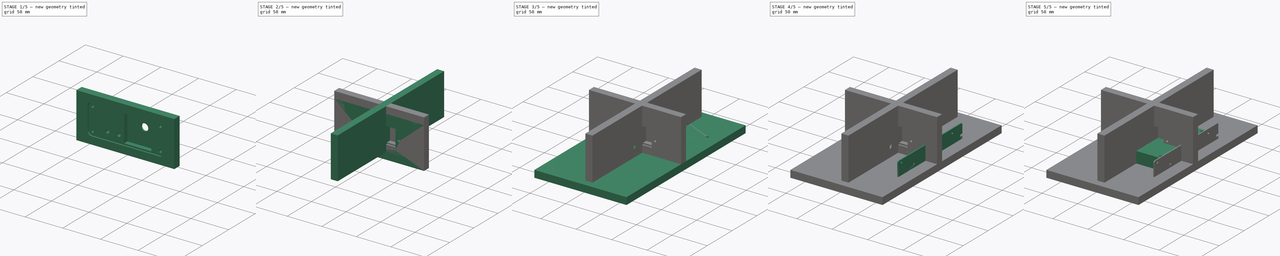
[diagram: build sequence overview — one tinted view per stage of 5, left to right]
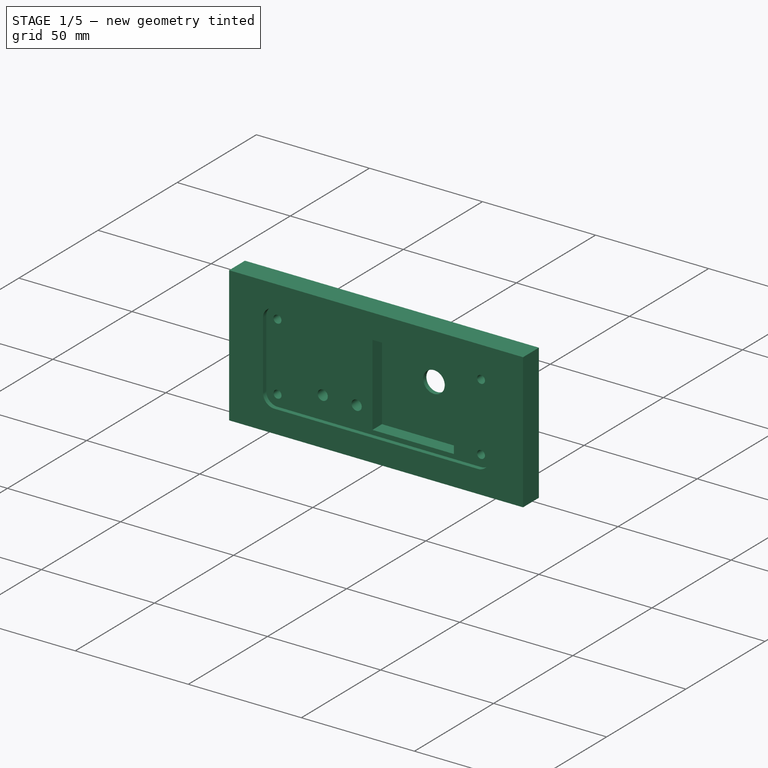
[diagram: stage 1 of 5 — iso view after this stage's code; geometry added in this stage tinted green]
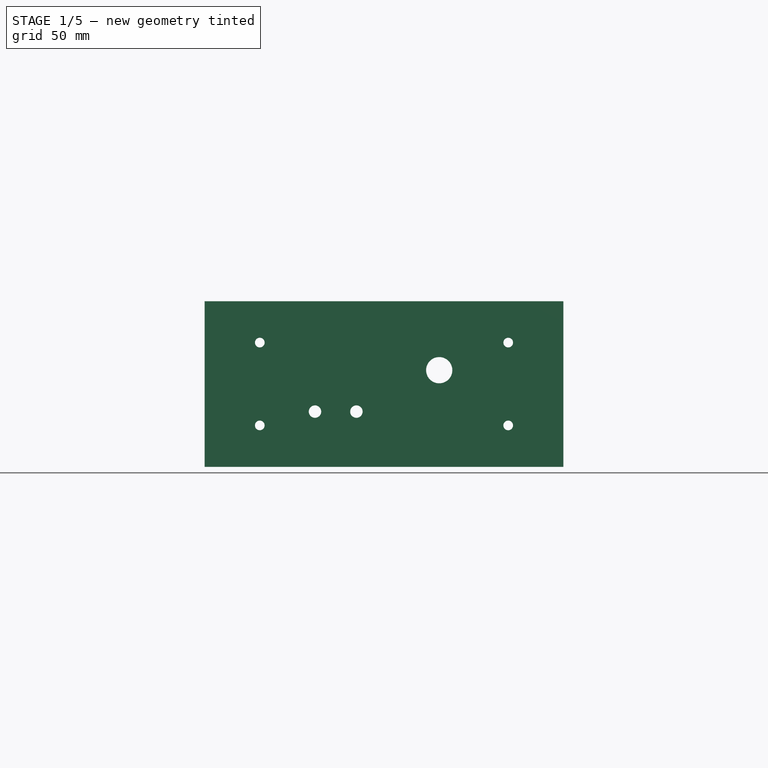
[diagram: stage 1 of 5 — front view after this stage's code; geometry added in this stage tinted green]
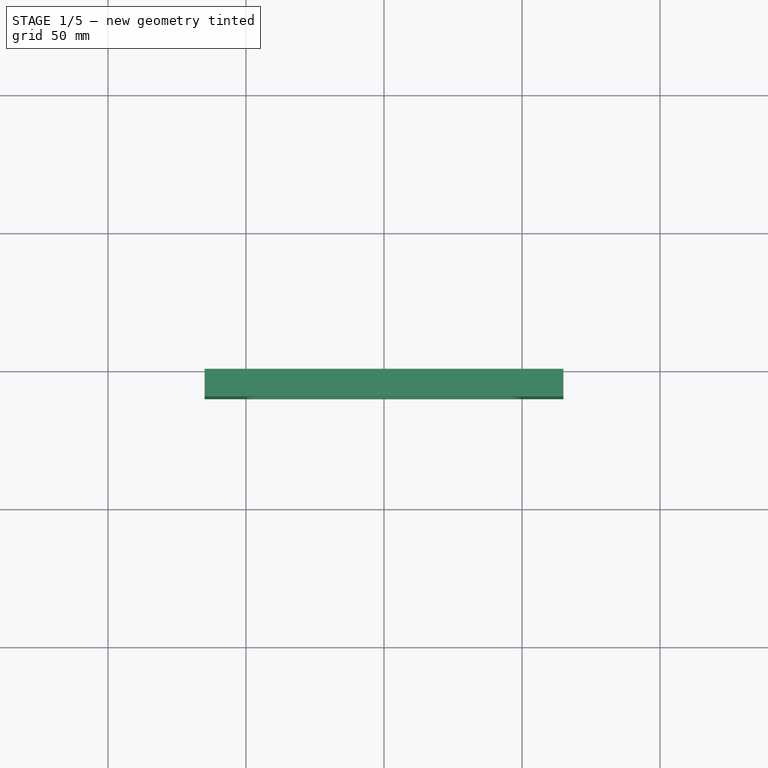
[diagram: stage 1 of 5 — top view after this stage's code; geometry added in this stage tinted green]
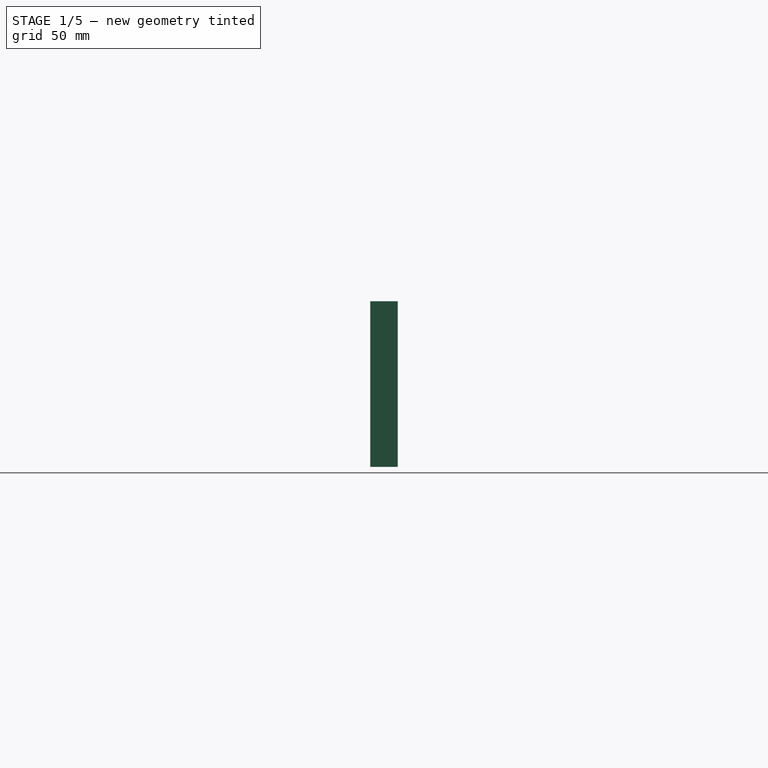
[diagram: stage 1 of 5 — right view after this stage's code; geometry added in this stage tinted green]
FCSTD DOCUMENT  (FreeCAD 1.1R20260414 (Git shallow))
Label: Power_Supply
License: All rights reserved
LicenseURL: http://en.wikipedia.org/wiki/All_rights_reserved
objects: Sketcher::SketchObject×24, App::Point×18, PartDesign::Pocket×15, PartDesign::Pad×9, PartDesign::Body×9, App::Part×9, PartDesign::Fillet×3, PartDesign::FeaturePython×1
note: 140 computed .brp shape members not serialized (recipe doc carries the construction recipe); baked Part::Feature solids carry a one-line shape summary decoded from their .brp

FEATURE [PartDesign::Body] Body007  label="Left_Body"
  AllowCompound = true
  Group = -> [Sketch020,Pad007,Sketch021,Pocket013]
  Origin = -> Origin014
  Tip = -> Pocket013
FEATURE [App::Part] Part006  label="Left_Part"
  Group = -> [Body007]
  Origin = -> Origin013
  Placement = pos=(-65,0,0) rot=(0,0,1;0rad)
FEATURE [Sketcher::SketchObject] Sketch022
  ArcFitTolerance = 0
  AttachmentSupport = -> [XZ_Plane008]
  ExternalTypes = [0]
  FullyConstrained = true
  MakeInternals = false
  MapMode = 5
  Placement = pos=(0,0,0) rot=(1,0,0;1.5708rad)
  _ExternalGeoVersion = 0
  sketch-geometry (4):
    g0: LineSegment StartX=-65 StartY=70 StartZ=0 EndX=65 EndY=70 EndZ=0
    g1: LineSegment StartX=65 StartY=70 StartZ=0 EndX=65 EndY=10 EndZ=0
    g2: LineSegment StartX=65 StartY=10 StartZ=0 EndX=-65 EndY=10 EndZ=0
    g3: LineSegment StartX=-65 StartY=10 StartZ=0 EndX=-65 EndY=70 EndZ=0
  constraints (10):
    c: Coincident(g0,g1)
    c: Coincident(g1,g2)
    c: Coincident(g2,g3)
    c: Coincident(g3,g0)
    c: Horizontal(g0)
    c: Horizontal(g2)
    c: Vertical(g1)
    c: Vertical(g3)
    c: Coincident(g0,g-3)
    c: Coincident(g1,g-4)
FEATURE [PartDesign::Pad] Pad008
  AlongSketchNormal = false
  Direction = (0,-1,2e-16)
  Length = 10
  Length2 = 100
  Placement = pos=(0,0,0) rot=(1,0,0;1.5708rad)
  Profile = -> Sketch022
  SideType = 0
  Suppressed = false
  Type = 0
  Type2 = 0
FEATURE [Sketcher::SketchObject] Sketch023
  ArcFitTolerance = 0
  AttachmentSupport = -> [Pad008]
  ExternalGeometry = -> [Pad008]
  ExternalTypes = [0]
  FullyConstrained = true
  MakeInternals = false
  MapMode = 5
  Placement = pos=(0,-10,0) rot=(1,0,0;1.5708rad)
  _ExternalGeoVersion = 0
  sketch-geometry (11):
    g0: Circle CenterX=-25 CenterY=30 CenterZ=0 NormalX=0 NormalY=0 NormalZ=1 AngleXU=0 Radius=2.25
    g1: Circle CenterX=-10 CenterY=30 CenterZ=0 NormalX=0 NormalY=0 NormalZ=1 AngleXU=0 Radius=2.25
    g2: GeomPoint [constr] X=20 Y=45 Z=0
    g3: LineSegment StartX=-3 StartY=58 StartZ=0 EndX=33 EndY=58 EndZ=0
    g4: LineSegment StartX=33 StartY=58 StartZ=0 EndX=33 EndY=22 EndZ=0
    g5: LineSegment StartX=33 StartY=22 StartZ=0 EndX=-3 EndY=22 EndZ=0
    g6: LineSegment StartX=-3 StartY=22 StartZ=0 EndX=-3 EndY=58 EndZ=0
    g7: Circle CenterX=-45 CenterY=55 CenterZ=0 NormalX=0 NormalY=0 NormalZ=1 AngleXU=0 Radius=1.75
    g8: Circle CenterX=-45 CenterY=25 CenterZ=0 NormalX=0 NormalY=0 NormalZ=1 AngleXU=0 Radius=1.75
    g9: Circle CenterX=45 CenterY=55 CenterZ=0 NormalX=0 NormalY=0 NormalZ=1 AngleXU=0 Radius=1.75
    g10: Circle CenterX=45 CenterY=25 CenterZ=0 NormalX=0 NormalY=0 NormalZ=1 AngleXU=0 Radius=1.75
  constraints (30):
    c: Coincident(g3,g4)
    c: Coincident(g4,g5)
    c: Coincident(g5,g6)
    c: Coincident(g6,g3)
    c: Horizontal(g3)
    c: Horizontal(g5)
    c: Vertical(g4)
    c: Vertical(g6)
    c: DistanceX(g3,g2) = 23
    c: DistanceY(g5,g2) = 23
    c: DistanceY(g2,g3) = 13
    c: DistanceX(g2,g3) = 13
    c: Diameter(g1) = 4.5
    c: Diameter(g0) = 4.5
    c: DistanceX(g2,g-3) = 45
    c: DistanceY(g2,g-3) = 25
    c: DistanceX(g-3,g0) = 40
    c: DistanceX(g-3,g1) = 55
    c: DistanceY(g0,g-3) = 40
    c: DistanceY(g1,g-3) = 40
    c: Diameter(g7) = 3.5
    c: Diameter(g8) = 3.5
    c: Diameter(g9) = 3.5
    c: Diameter(g10) = 3.5
    c: DistanceY(g7,g-3) = 15
    c: DistanceX(g-3,g7) = 20
    c: DistanceX(g-4,g8) = 20
    c: DistanceY(g-4,g8) = 15
    c: Symmetric(g7,g9,g-2)
    c: Symmetric(g8,g10,g-2)
FEATURE [PartDesign::Pocket] Pocket014
  BaseFeature = -> Pad008
  Direction = (0,1,-2e-16)
  Length = 5
  Length2 = 100
  Placement = pos=(0,0,0) rot=(1,0,0;1.5708rad)
  Profile = -> Sketch023
  SideType = 2
  Suppressed = false
  Type = 1
  Type2 = 0
FEATURE [Sketcher::SketchObject] Sketch024
  ArcFitTolerance = 0
  AttachmentSupport = -> [Pocket014]
  ExternalGeometry = -> [Pocket014]
  ExternalTypes = [0]
  FullyConstrained = true
  MakeInternals = false
  MapMode = 5
  Placement = pos=(0,-10,0) rot=(1,0,0;1.5708rad)
  _ExternalGeoVersion = 0
  sketch-geometry (4):
    g0: LineSegment StartX=-50 StartY=60 StartZ=0 EndX=50 EndY=60 EndZ=0
    g1: LineSegment StartX=50 StartY=60 StartZ=0 EndX=50 EndY=20 EndZ=0
    g2: LineSegment StartX=50 StartY=20 StartZ=0 EndX=-50 EndY=20 EndZ=0
    g3: LineSegment StartX=-50 StartY=20 StartZ=0 EndX=-50 EndY=60 EndZ=0
  constraints (12):
    c: Coincident(g0,g1)
    c: Coincident(g1,g2)
    c: Coincident(g2,g3)
    c: Coincident(g3,g0)
    c: Horizontal(g0)
    c: Horizontal(g2)
    c: Vertical(g1)
    c: Vertical(g3)
    c: DistanceY(g1,g1) = 40
    c: DistanceY(g0,g-3) = 10
    c: DistanceX(g0,g0) = 100
    c: DistanceX(g0,g-3) = 15
FEATURE [PartDesign::Pocket] Pocket015
  BaseFeature = -> Pocket014
  Direction = (0,1,-2e-16)
  Length = 2
  Length2 = 100
  Placement = pos=(0,0,0) rot=(1,0,0;1.5708rad)
  Profile = -> Sketch024
  SideType = 0
  Suppressed = false
  Type = 0
  Type2 = 0
FEATURE [PartDesign::Fillet] Fillet002
  Base = -> Pocket015 [Edge48,Edge50,Edge52,Edge47]
  BaseFeature = -> Pocket015
  Placement = pos=(0,0,0) rot=(1,0,0;1.5708rad)
  Radius = 5
  SupportTransform = false
  Suppressed = false
  UseAllEdges = false
FEATURE [PartDesign::Body] Body008  label="Front_Body"
  AllowCompound = true
  Group = -> [Sketch022,Pad008,Sketch023,Pocket014,Sketch024,Pocket015,Fillet002]
  Origin = -> Origin016
  Tip = -> Fillet002
FEATURE [App::Part] Part007  label="Front_Part"
  Group = -> [Body008]
  Origin = -> Origin015
  Placement = pos=(0,-110,0) rot=(0,0,1;0rad)
FEATURE [Sketcher::SketchObject] Sketch025
  ArcFitTolerance = 0
  AttachmentSupport = -> [XZ_Plane009]
  ExternalTypes = [0]
  FullyConstrained = true
  MakeInternals = false
  MapMode = 5
  Placement = pos=(0,0,0) rot=(1,0,0;1.5708rad)
  _ExternalGeoVersion = 0
  sketch-geometry (8):
    g0: LineSegment StartX=-45 StartY=60 StartZ=0 EndX=45 EndY=60 EndZ=0
    g1: LineSegment StartX=50 StartY=55 StartZ=0 EndX=50 EndY=25 EndZ=0
    g2: LineSegment StartX=45 StartY=20 StartZ=0 EndX=-45 EndY=20 EndZ=0
    g3: LineSegment StartX=-50 StartY=25 StartZ=0 EndX=-50 EndY=55 EndZ=0
    g4: ArcOfCircle CenterX=-45 CenterY=55 CenterZ=0 NormalX=0 NormalY=0 NormalZ=1 AngleXU=0 Radius=5 StartAngle=1.5708 EndAngle=3.14159
    g5: ArcOfCircle CenterX=45 CenterY=55 CenterZ=0 NormalX=0 NormalY=0 NormalZ=1 AngleXU=0 Radius=5 StartAngle=5e-16 EndAngle=1.5708
    g6: ArcOfCircle CenterX=45 CenterY=25 CenterZ=0 NormalX=0 NormalY=0 NormalZ=1 AngleXU=0 Radius=5 StartAngle=4.71239 EndAngle=6.28319
    g7: ArcOfCircle CenterX=-45 CenterY=25 CenterZ=0 NormalX=0 NormalY=0 NormalZ=1 AngleXU=0 Radius=5 StartAngle=3.14159 EndAngle=4.71239
  constraints (14):
    c: Tangent(g0,g4) = 1.5708
    c: Tangent(g3,g4) = 1.5708
    c: Tangent(g0,g5) = 1.5708
    c: Tangent(g1,g5) = 1.5708
    c: Tangent(g1,g6) = 1.5708
    c: Tangent(g2,g6) = 1.5708
    c: Tangent(g3,g7) = 1.5708
    c: Tangent(g2,g7) = 1.5708
    c: Coincident(g0,g-3)
    c: Coincident(g1,g-5)
    c: Coincident(g3,g-4)
    c: Coincident(g3,g-4)
    c: Coincident(g2,g-6)
    c: Coincident(g1,g-5)
FEATURE [PartDesign::Pad] Pad009
  AlongSketchNormal = false
  Direction = (0,-1,2e-16)
  Length = 2
  Length2 = 100
  Placement = pos=(0,0,0) rot=(1,0,0;1.5708rad)
  Profile = -> Sketch025
  SideType = 0
  Suppressed = false
  Type = 0
  Type2 = 0
FEATURE [Sketcher::SketchObject] Sketch026
  ArcFitTolerance = 0
  AttachmentSupport = -> [Pad009]
  ExternalTypes = [0]
  FullyConstrained = true
  MakeInternals = false
  MapMode = 5
  Placement = pos=(0,-2,0) rot=(1,0,0;1.5708rad)
  _ExternalGeoVersion = 0
  sketch-geometry (7):
    g0: Circle CenterX=-45 CenterY=55 CenterZ=0 NormalX=0 NormalY=0 NormalZ=1 AngleXU=0 Radius=1.75
    g1: Circle CenterX=-45 CenterY=25 CenterZ=0 NormalX=0 NormalY=0 NormalZ=1 AngleXU=0 Radius=1.75
    g2: Circle CenterX=-25 CenterY=30 CenterZ=0 NormalX=0 NormalY=0 NormalZ=1 AngleXU=0 Radius=2.25
    g3: Circle CenterX=-10 CenterY=30 CenterZ=0 NormalX=0 NormalY=0 NormalZ=1 AngleXU=0 Radius=2.25
    g4: Circle CenterX=45 CenterY=55 CenterZ=0 NormalX=0 NormalY=0 NormalZ=1 AngleXU=0 Radius=1.75
    g5: Circle CenterX=45 CenterY=25 CenterZ=0 NormalX=0 NormalY=0 NormalZ=1 AngleXU=0 Radius=1.75
    g6: Circle CenterX=20 CenterY=45 CenterZ=0 NormalX=0 NormalY=0 NormalZ=1 AngleXU=0 Radius=4.75
  constraints (21):
    c: Diameter(g0) = 3.5
    c: Diameter(g1) = 3.5
    c: Diameter(g2) = 4.5
    c: Diameter(g3) = 4.5
    c: Diameter(g4) = 3.5
    c: Diameter(g5) = 3.5
    c: DistanceX(g0,g-3) = 1.75
    c: DistanceY(g0,g-3) = 0
    c: DistanceX(g1,g-4) = 1.75
    c: DistanceY(g-4,g1) = 0
    c: DistanceX(g4,g-5) = 1.75
    c: DistanceY(g4,g-5) = 0
    c: DistanceX(g5,g-6) = 1.75
    c: DistanceY(g-6,g5) = 0
    c: DistanceX(g2,g-7) = 2.25
    c: DistanceY(g2,g-7) = 0
    c: DistanceX(g3,g-8) = 2.25
    c: DistanceY(g3,g-8) = 0
    c: DistanceX(g6,g-9) = 30
    c: DistanceY(g6,g-10) = 15
    c: Diameter(g6) = 9.5
FEATURE [PartDesign::Pocket] Pocket016
  BaseFeature = -> Pad009
  Direction = (0,1,-2e-16)
  Length = 5
  Length2 = 100
  Placement = pos=(0,0,0) rot=(1,0,0;1.5708rad)
  Profile = -> Sketch026
  SideType = 2
  Suppressed = false
  Type = 1
  Type2 = 0
FEATURE [PartDesign::Body] Body009  label="AluminiumProfile_Body"
  AllowCompound = true
  Group = -> [Sketch025,Pad009,Sketch026,Pocket016]
  Origin = -> Origin018
  Tip = -> Pocket016
FEATURE [App::Part] Part008  label="AluminiumProfile_Part"
  Group = -> [Body009]
  Origin = -> Origin017
  Placement = pos=(0,-118,0) rot=(0,0,1;0rad)
FEATURE [App::Point] Origin019  label="Origine"
  Role = Origin
FEATURE [App::Point] Origin020  label="Origine"
  Role = Origin
FEATURE [App::Point] Origin021  label="Origine"
  Role = Origin
FEATURE [App::Point] Origin022  label="Origine"
  Role = Origin
FEATURE [App::Point] Origin023  label="Origine"
  Role = Origin
FEATURE [App::Point] Origin024  label="Origine"
  Role = Origin
FEATURE [App::Point] Origin025  label="Origine"
  Role = Origin
FEATURE [App::Point] Origin026  label="Origine"
  Role = Origin
FEATURE [App::Point] Origin027  label="Origine"
  Role = Origin
FEATURE [App::Point] Origin028  label="Origine"
  Role = Origin
FEATURE [App::Point] Origin029  label="Origine"
  Role = Origin
FEATURE [App::Point] Origin030  label="Origine"
  Role = Origin
FEATURE [App::Point] Origin031  label="Origine"
  Role = Origin
FEATURE [App::Point] Origin032  label="Origine"
  Role = Origin
FEATURE [App::Point] Origin033  label="Origine"
  Role = Origin
FEATURE [App::Point] Origin034  label="Origine"
  Role = Origin
FEATURE [App::Point] Origin035  label="Origine"
  Role = Origin
FEATURE [App::Point] Origin036  label="Origine"
  Role = Origin
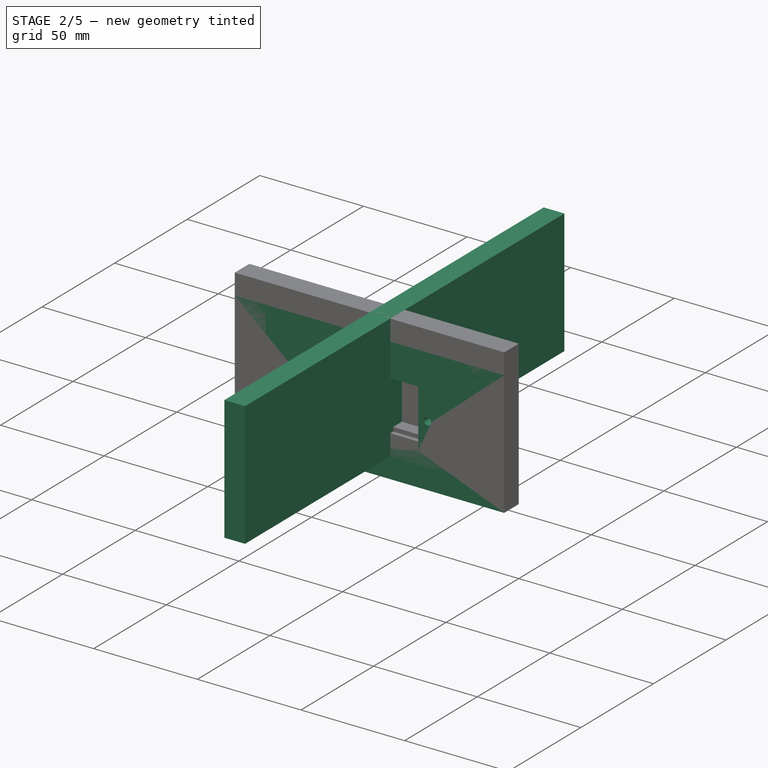
[diagram: stage 2 of 5 — iso view after this stage's code; geometry added in this stage tinted green]
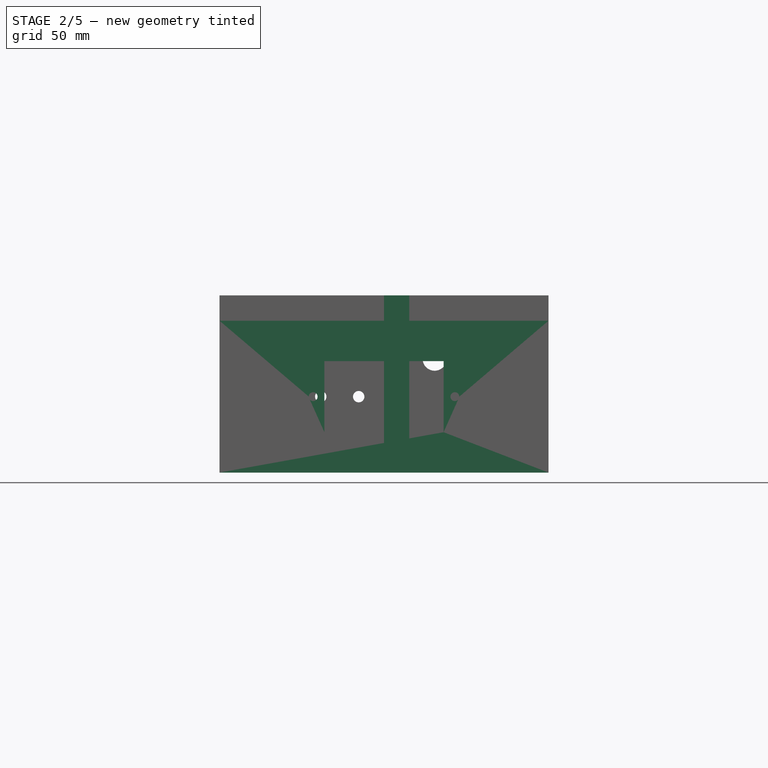
[diagram: stage 2 of 5 — front view after this stage's code; geometry added in this stage tinted green]
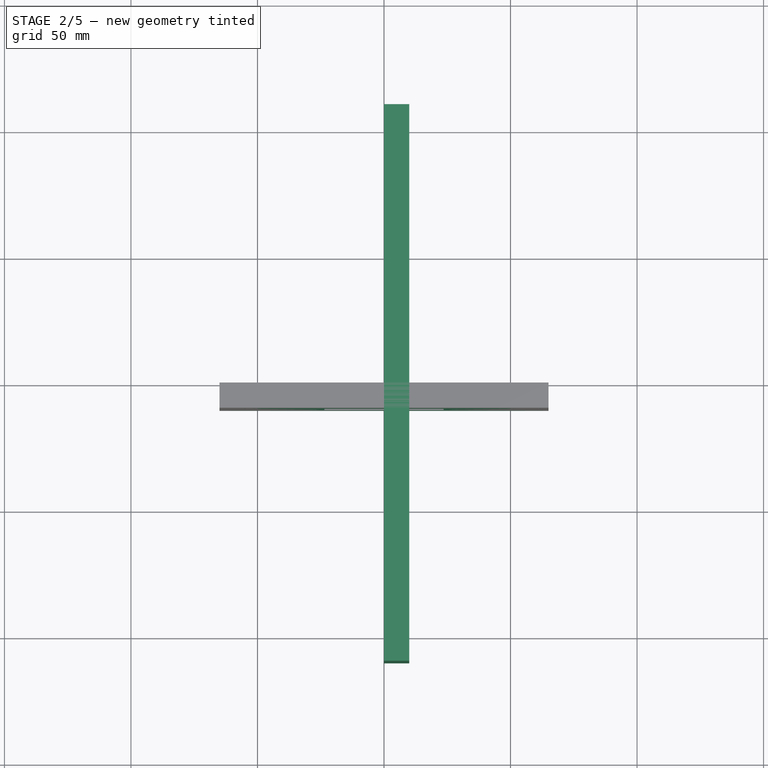
[diagram: stage 2 of 5 — top view after this stage's code; geometry added in this stage tinted green]
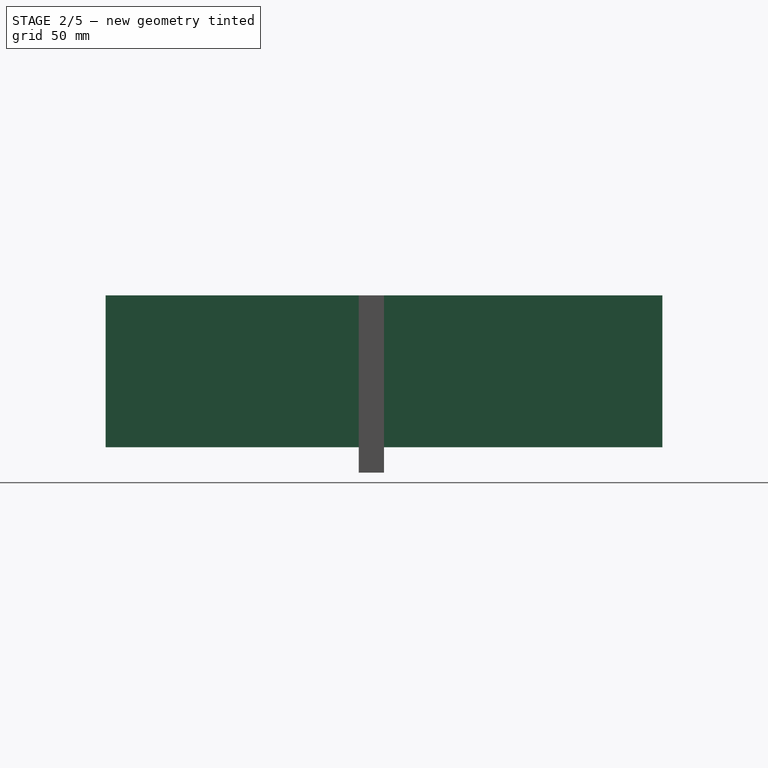
[diagram: stage 2 of 5 — right view after this stage's code; geometry added in this stage tinted green]
FEATURE [Sketcher::SketchObject] Sketch001
  ArcFitTolerance = 0
  AttachmentSupport = -> [XZ_Plane001]
  ExternalTypes = [0]
  FullyConstrained = true
  MakeInternals = false
  MapMode = 5
  Placement = pos=(0,0,0) rot=(1,0,0;1.5708rad)
  _ExternalGeoVersion = 0
  sketch-geometry (4):
    g0: LineSegment StartX=-65 StartY=60 StartZ=0 EndX=65 EndY=60 EndZ=0
    g1: LineSegment StartX=65 StartY=60 StartZ=0 EndX=65 EndY=2.84e-14 EndZ=0
    g2: LineSegment StartX=65 StartY=2.84e-14 StartZ=0 EndX=-65 EndY=-2.22e-14 EndZ=0
    g3: LineSegment StartX=-65 StartY=-2.22e-14 StartZ=0 EndX=-65 EndY=60 EndZ=0
  constraints (10):
    c: Coincident(g0,g1)
    c: Coincident(g1,g2)
    c: Coincident(g2,g3)
    c: Coincident(g3,g0)
    c: Horizontal(g0)
    c: Vertical(g1)
    c: Vertical(g3)
    c: Coincident(g-3,g2)
    c: Coincident(g1,g-3)
    c: DistanceY(g1,g1) = 60
FEATURE [PartDesign::Pad] Pad001
  AlongSketchNormal = false
  Direction = (0,-1,2e-16)
  Length = 10
  Length2 = 100
  Placement = pos=(0,0,0) rot=(1,0,0;1.5708rad)
  Profile = -> Sketch001
  SideType = 0
  Suppressed = false
  Type = 0
  Type2 = 0
FEATURE [PartDesign::Body] Body005  label="Top_Body"
  AllowCompound = true
  Group = -> [Sketch008,Pad005,Sketch009,Pocket003,Sketch010,Pocket004,Sketch011,Pocket005]
  Origin = -> Origin010
  Tip = -> Pocket005
FEATURE [App::Part] Part004  label="Top_Part"
  Group = -> [Body005]
  Origin = -> Origin009
  Placement = pos=(0,0,70) rot=(0,0,1;0rad)
FEATURE [Sketcher::SketchObject] Sketch012
  ArcFitTolerance = 0
  AttachmentSupport = -> [YZ_Plane006]
  ExternalTypes = [0]
  FullyConstrained = true
  MakeInternals = false
  MapMode = 5
  Placement = pos=(0,0,0) rot=(0.57735,0.57735,0.57735;2.0944rad)
  _ExternalGeoVersion = 0
  sketch-geometry (4):
    g0: LineSegment StartX=-110 StartY=70 StartZ=0 EndX=110 EndY=70 EndZ=0
    g1: LineSegment StartX=110 StartY=70 StartZ=0 EndX=110 EndY=10 EndZ=0
    g2: LineSegment StartX=110 StartY=10 StartZ=0 EndX=-110 EndY=10 EndZ=0
    g3: LineSegment StartX=-110 StartY=10 StartZ=0 EndX=-110 EndY=70 EndZ=0
  constraints (12):
    c: Horizontal(g0)
    c: Horizontal(g2)
    c: Vertical(g1)
    c: Vertical(g3)
    c: DistanceX(g-3,g0) = 10
    c: DistanceY(g-3,g0) = 0
    c: DistanceY(g-4,g2) = 0
    c: Coincident(g1,g0)
    c: Coincident(g2,g1)
    c: DistanceX(g0,g-3) = 10
    c: Coincident(g3,g0)
    c: Coincident(g3,g2)
FEATURE [PartDesign::Pad] Pad006
  AlongSketchNormal = false
  Direction = (1,0,0)
  Length = 10
  Length2 = 100
  Placement = pos=(0,0,0) rot=(0.57735,0.57735,0.57735;2.0944rad)
  Profile = -> Sketch012
  SideType = 0
  Suppressed = false
  Type = 0
  Type2 = 0
FEATURE [PartDesign::Body] Body006
  AllowCompound = true
  Group = -> [Sketch012,Pad006,Sketch017,Pocket010,Sketch018,Pocket011]
  Origin = -> Origin012
  Tip = -> Pocket011
FEATURE [App::Part] Part005  label="Right_Part"
  Group = -> [Body006]
  Origin = -> Origin011
  Placement = pos=(55,0,0) rot=(0,0,1;0rad)
FEATURE [Sketcher::SketchObject] Sketch019
  ArcFitTolerance = 0
  AttachmentSupport = -> [Pad001]
  ExternalTypes = [0]
  FullyConstrained = true
  MakeInternals = false
  MapMode = 5
  Placement = pos=(0,6.7e-15,0) rot=(-1,0,0;1.5708rad)
  _ExternalGeoVersion = 0
  sketch-geometry (6):
    g0: LineSegment StartX=-23.55 StartY=-15.95 StartZ=0 EndX=23.55 EndY=-15.95 EndZ=0
    g1: LineSegment StartX=23.55 StartY=-15.95 StartZ=0 EndX=23.55 EndY=-44.05 EndZ=0
    g2: LineSegment StartX=23.55 StartY=-44.05 StartZ=0 EndX=-23.55 EndY=-44.05 EndZ=0
    g3: LineSegment StartX=-23.55 StartY=-44.05 StartZ=0 EndX=-23.55 EndY=-15.95 EndZ=0
    g4: Circle CenterX=28 CenterY=-30 CenterZ=0 NormalX=0 NormalY=0 NormalZ=1 AngleXU=0 Radius=1.75
    g5: Circle CenterX=-28 CenterY=-30 CenterZ=0 NormalX=0 NormalY=0 NormalZ=1 AngleXU=0 Radius=1.75
  constraints (17):
    c: Coincident(g0,g1)
    c: Coincident(g1,g2)
    c: Coincident(g2,g3)
    c: Coincident(g3,g0)
    c: Horizontal(g2)
    c: Vertical(g1)
    c: Vertical(g3)
    c: DistanceX(g0,g0) = 47.1
    c: DistanceY(g1,g1) = 28.1
    c: DistanceX(g0,g4) = 4.45
    c: DistanceX(g5,g0) = 4.45
    c: DistanceY(g4,g0) = 14.05
    c: DistanceY(g5,g0) = 14.05
    c: Diameter(g4) = 3.5
    c: Diameter(g5) = 3.5
    c: DistanceY(g5,g-1) = 30
    c: Symmetric(g0,g0,g-2)
FEATURE [PartDesign::Pocket] Pocket012
  BaseFeature = -> Pad001
  Direction = (0,-1,-2e-16)
  Length = 5
  Length2 = 100
  Placement = pos=(0,0,0) rot=(1,0,0;1.5708rad)
  Profile = -> Sketch019
  SideType = 2
  Suppressed = false
  Type = 1
  Type2 = 0
FEATURE [PartDesign::Body] Body001  label="Back_Body"
  AllowCompound = true
  Group = -> [Sketch001,Pad001,Sketch019,Pocket012]
  Origin = -> Origin003
  Tip = -> Pocket012
FEATURE [App::Part] Part001  label="Back_Part"
  Group = -> [Body001]
  Origin = -> Origin002
  Placement = pos=(0,120,10) rot=(0,0,1;0rad)
FEATURE [Sketcher::SketchObject] Sketch020
  ArcFitTolerance = 0
  AttachmentSupport = -> [YZ_Plane007]
  ExternalTypes = [0]
  FullyConstrained = true
  MakeInternals = false
  MapMode = 5
  Placement = pos=(0,0,0) rot=(0.57735,0.57735,0.57735;2.0944rad)
  _ExternalGeoVersion = 0
  sketch-geometry (4):
    g0: LineSegment StartX=-110 StartY=70 StartZ=0 EndX=110 EndY=70 EndZ=0
    g1: LineSegment StartX=110 StartY=70 StartZ=0 EndX=110 EndY=10 EndZ=0
    g2: LineSegment StartX=110 StartY=10 StartZ=0 EndX=-110 EndY=10 EndZ=0
    g3: LineSegment StartX=-110 StartY=10 StartZ=0 EndX=-110 EndY=70 EndZ=0
  constraints (12):
    c: Coincident(g0,g1)
    c: Coincident(g1,g2)
    c: Coincident(g2,g3)
    c: Coincident(g3,g0)
    c: Horizontal(g0)
    c: Horizontal(g2)
    c: Vertical(g1)
    c: Vertical(g3)
    c: DistanceX(g-3,g0) = 10
    c: DistanceX(g-3,g0) = -10
    c: DistanceY(g-3,g0) = 0
    c: DistanceY(g2,g-4) = 0
FEATURE [PartDesign::Pad] Pad007
  AlongSketchNormal = false
  Direction = (1,0,0)
  Length = 10
  Length2 = 100
  Placement = pos=(0,0,0) rot=(0.57735,0.57735,0.57735;2.0944rad)
  Profile = -> Sketch020
  SideType = 0
  Suppressed = false
  Type = 0
  Type2 = 0
FEATURE [Sketcher::SketchObject] Sketch021
  ArcFitTolerance = 0
  AttachmentSupport = -> [Pad007]
  ExternalTypes = [0]
  FullyConstrained = true
  MakeInternals = false
  MapMode = 5
  Placement = pos=(0,0,0) rot=(0.57735,0.57735,-0.57735;4.18879rad)
  _ExternalGeoVersion = 0
  sketch-geometry (28):
    g0: ArcOfCircle CenterX=-23 CenterY=-60 CenterZ=0 NormalX=0 NormalY=0 NormalZ=1 AngleXU=0 Radius=4 StartAngle=2.35619 EndAngle=5.49779
    g1: ArcOfCircle CenterX=17 CenterY=-20 CenterZ=0 NormalX=0 NormalY=0 NormalZ=1 AngleXU=0 Radius=4 StartAngle=5.49779 EndAngle=8.63938
    g2: LineSegment StartX=-20.1716 StartY=-62.8284 StartZ=0 EndX=19.8284 EndY=-22.8284 EndZ=0
    g3: LineSegment StartX=14.1716 StartY=-17.1716 StartZ=0 EndX=-25.8284 EndY=-57.1716 EndZ=0
    g4: ArcOfCircle CenterX=-4.61522 CenterY=-60 CenterZ=0 NormalX=0 NormalY=0 NormalZ=1 AngleXU=0 Radius=4 StartAngle=2.35619 EndAngle=5.49779
    g5: ArcOfCircle CenterX=35.3848 CenterY=-20 CenterZ=0 NormalX=0 NormalY=0 NormalZ=1 AngleXU=0 Radius=4 StartAngle=5.49779 EndAngle=8.63938
    g6: LineSegment StartX=-1.7868 StartY=-62.8284 StartZ=0 EndX=38.2132 EndY=-22.8284 EndZ=0
    g7: LineSegment StartX=32.5563 StartY=-17.1716 StartZ=0 EndX=-7.44365 EndY=-57.1716 EndZ=0
    g8: ArcOfCircle CenterX=13.7696 CenterY=-60 CenterZ=0 NormalX=0 NormalY=0 NormalZ=1 AngleXU=0 Radius=4 StartAngle=2.35619 EndAngle=5.49779
    g9: ArcOfCircle CenterX=53.7696 CenterY=-20 CenterZ=0 NormalX=0 NormalY=0 NormalZ=1 AngleXU=0 Radius=4 StartAngle=5.49779 EndAngle=8.63938
    g10: LineSegment StartX=16.598 StartY=-62.8284 StartZ=0 EndX=56.598 EndY=-22.8284 EndZ=0
    g11: LineSegment StartX=50.9411 StartY=-17.1716 StartZ=0 EndX=10.9411 EndY=-57.1716 EndZ=0
    g12: ArcOfCircle CenterX=32.1543 CenterY=-60 CenterZ=0 NormalX=0 NormalY=0 NormalZ=1 AngleXU=0 Radius=4 StartAngle=2.35619 EndAngle=5.49779
    g13: ArcOfCircle CenterX=56 CenterY=-36.1543 CenterZ=0 NormalX=0 NormalY=0 NormalZ=1 AngleXU=0 Radius=4 StartAngle=5.49779 EndAngle=8.63938
    g14: LineSegment StartX=34.9828 StartY=-62.8284 StartZ=0 EndX=58.8284 EndY=-38.9828 EndZ=0
    g15: LineSegment StartX=53.1716 StartY=-33.3259 StartZ=0 EndX=29.3259 EndY=-57.1716 EndZ=0
    g16: ArcOfCircle CenterX=50.5391 CenterY=-60 CenterZ=0 NormalX=0 NormalY=0 NormalZ=1 AngleXU=0 Radius=4 StartAngle=2.35619 EndAngle=5.49779
    g17: ArcOfCircle CenterX=56 CenterY=-54.5391 CenterZ=0 NormalX=0 NormalY=0 NormalZ=1 AngleXU=0 Radius=4 StartAngle=5.49779 EndAngle=8.63938
    g18: LineSegment StartX=53.3675 StartY=-62.8284 StartZ=0 EndX=58.8284 EndY=-57.3675 EndZ=0
    g19: LineSegment StartX=53.1716 StartY=-51.7107 StartZ=0 EndX=47.7107 EndY=-57.1716 EndZ=0
    g20: ArcOfCircle CenterX=-23 CenterY=-41.6152 CenterZ=0 NormalX=0 NormalY=0 NormalZ=1 AngleXU=0 Radius=4 StartAngle=2.35619 EndAngle=5.49779
    g21: ArcOfCircle CenterX=-1.38478 CenterY=-20 CenterZ=0 NormalX=0 NormalY=0 NormalZ=1 AngleXU=0 Radius=4 StartAngle=5.49779 EndAngle=8.63938
    g22: LineSegment StartX=-20.1716 StartY=-44.4437 StartZ=0 EndX=1.44365 EndY=-22.8284 EndZ=0
    g23: LineSegment StartX=-4.2132 StartY=-17.1716 StartZ=0 EndX=-25.8284 EndY=-38.7868 EndZ=0
    g24: ArcOfCircle CenterX=-23 CenterY=-23.2304 CenterZ=0 NormalX=0 NormalY=0 NormalZ=1 AngleXU=0 Radius=4 StartAngle=2.35619 EndAngle=5.49779
    g25: ArcOfCircle CenterX=-19.7696 CenterY=-20 CenterZ=0 NormalX=0 NormalY=0 NormalZ=1 AngleXU=0 Radius=4 StartAngle=5.49779 EndAngle=8.63938
    g26: LineSegment StartX=-20.1716 StartY=-26.0589 StartZ=0 EndX=-16.9411 EndY=-22.8284 EndZ=0
    g27: LineSegment StartX=-22.598 StartY=-17.1716 StartZ=0 EndX=-25.8284 EndY=-20.402 EndZ=0
  constraints (70):
    c: Tangent(g0,g2) = -1.5708
    c: Tangent(g2,g1) = -1.5708
    c: Tangent(g1,g3) = -1.5708
    c: Tangent(g3,g0) = -1.5708
    c: Equal(g0,g1)
    c: Tangent(g4,g6) = -1.5708
    c: Tangent(g6,g5) = -1.5708
    c: Tangent(g5,g7) = -1.5708
    c: Tangent(g7,g4) = -1.5708
    c: Equal(g4,g5)
    c: Parallel(g2,g7)
    c: Angle(g-3,g2) = 0.785398
    c: DistanceX(g-3,g0) = 97
    c: DistanceY(g-3,g0) = 10
    c: DistanceY(g1,g-4) = 10
    c: Radius(g1) = 4
    c: Radius(g5) = 4
    c: Distance(g1,g7) = 5
    c: DistanceY(g0,g4) = 0
    c: DistanceY(g1,g5) = 0
    c: Tangent(g8,g10) = -1.5708
    c: Tangent(g10,g9) = -1.5708
    c: Tangent(g9,g11) = -1.5708
    c: Tangent(g11,g8) = -1.5708
    c: Equal(g8,g9)
    c: Radius(g9) = 4
    c: Parallel(g6,g11)
    c: Distance(g5,g11) = 5
    c: DistanceY(g9,g5) = 0
    c: DistanceY(g4,g8) = 0
    c: Tangent(g12,g14) = -1.5708
    c: Tangent(g14,g13) = -1.5708
    c: Tangent(g13,g15) = -1.5708
    c: Tangent(g15,g12) = -1.5708
    c: Equal(g12,g13)
    c: Radius(g13) = 4
    c: Parallel(g10,g15)
    c: Distance(g13,g10) = 5
    c: DistanceY(g8,g12) = 0
    c: DistanceX(g13,g-3) = 64
    c: Tangent(g16,g18) = -1.5708
    c: Tangent(g18,g17) = -1.5708
    c: Tangent(g17,g19) = -1.5708
    c: Tangent(g19,g16) = -1.5708
    c: Equal(g16,g17)
    c: Radius(g17) = 4
    c: Parallel(g14,g19)
    c: Distance(g17,g14) = 5
    c: DistanceX(g13,g17) = 0
    c: DistanceY(g12,g16) = 0
    c: Tangent(g20,g22) = -1.5708
    c: Tangent(g22,g21) = -1.5708
    c: Tangent(g21,g23) = -1.5708
    c: Tangent(g23,g20) = -1.5708
    c: Equal(g20,g21)
    c: Radius(g21) = 4
    c: Parallel(g22,g3)
    c: Distance(g21,g3) = 5
    c: DistanceY(g21,g1) = 0
    c: DistanceX(g0,g20) = 0
    c: Tangent(g24,g26) = -1.5708
    c: Tangent(g26,g25) = -1.5708
    c: Tangent(g25,g27) = -1.5708
    c: Tangent(g27,g24) = -1.5708
    c: Equal(g24,g25)
    c: Radius(g25) = 4
    c: Parallel(g26,g23)
    c: Distance(g24,g23) = 5
    c: DistanceX(g24,g20) = 0
    c: DistanceY(g25,g21) = 0
FEATURE [PartDesign::Pocket] Pocket013
  BaseFeature = -> Pad007
  Direction = (1,0,0)
  Length = 5
  Length2 = 100
  Placement = pos=(0,0,0) rot=(0.57735,0.57735,0.57735;2.0944rad)
  Profile = -> Sketch021
  SideType = 2
  Suppressed = false
  Type = 1
  Type2 = 0
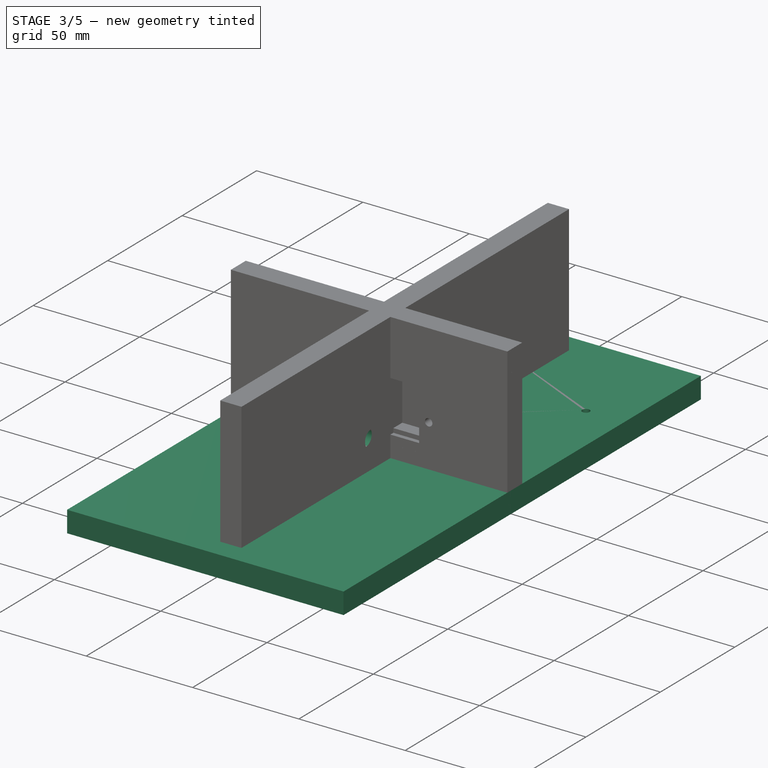
[diagram: stage 3 of 5 — iso view after this stage's code; geometry added in this stage tinted green]
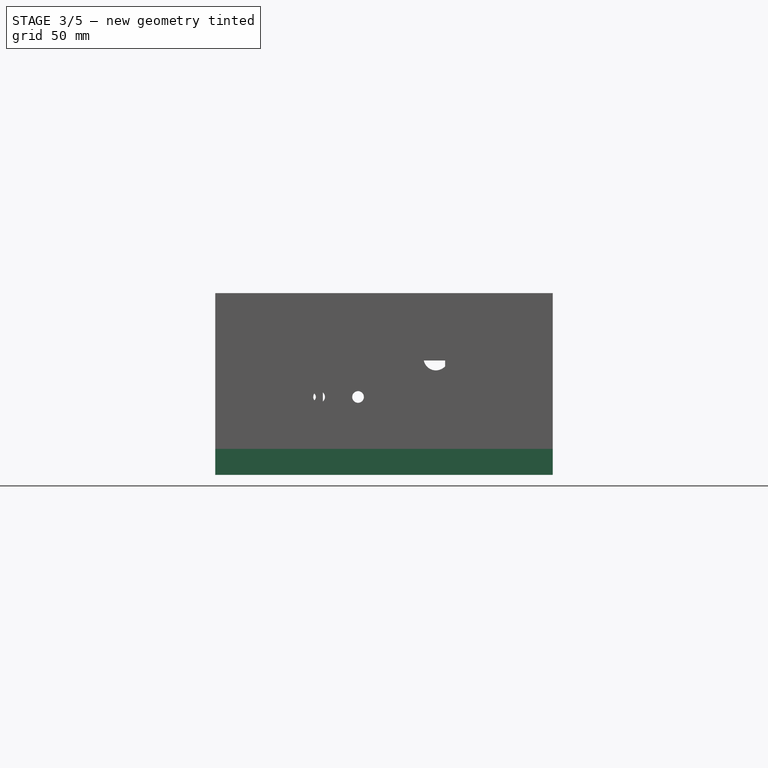
[diagram: stage 3 of 5 — front view after this stage's code; geometry added in this stage tinted green]
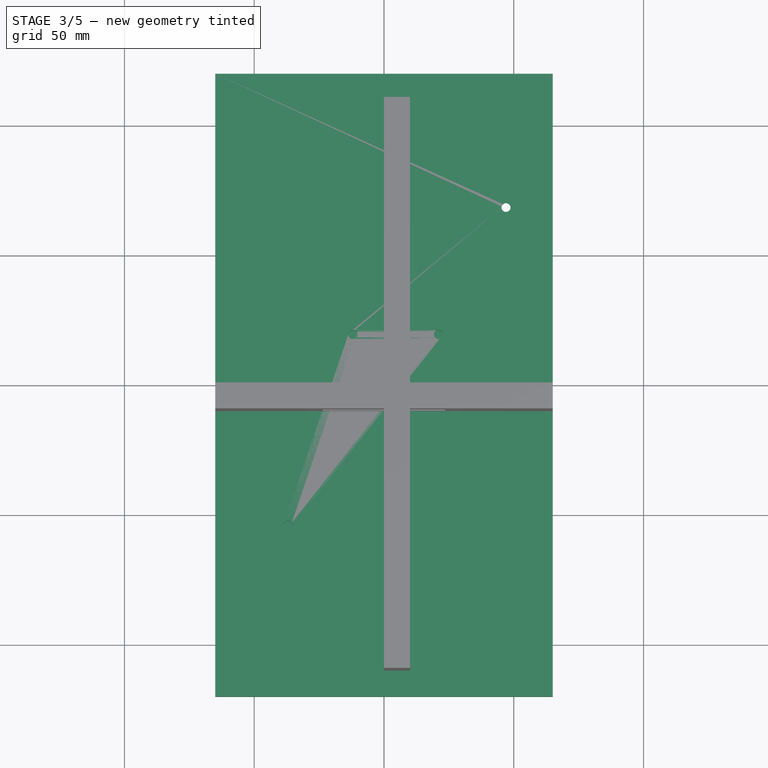
[diagram: stage 3 of 5 — top view after this stage's code; geometry added in this stage tinted green]
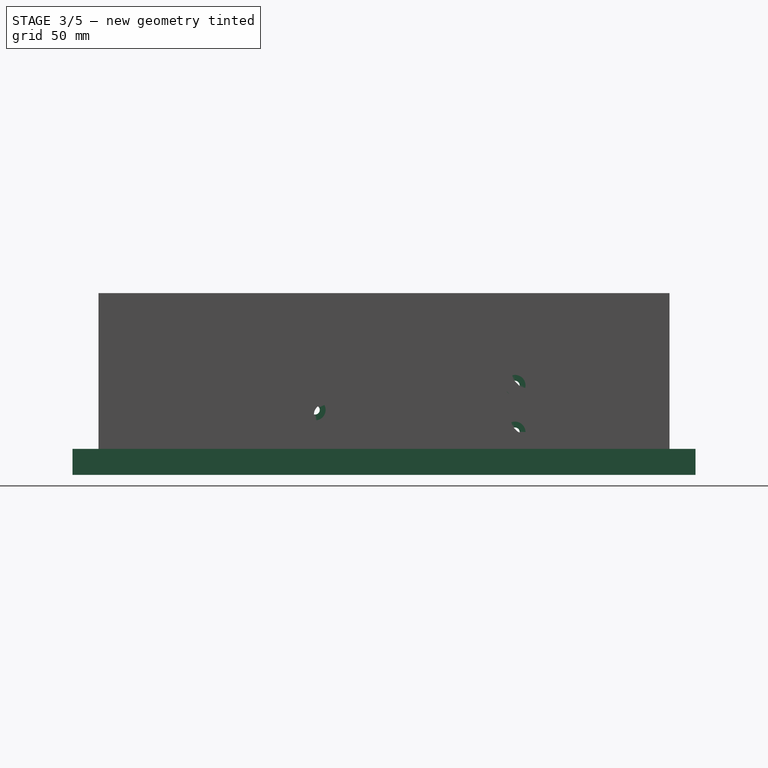
[diagram: stage 3 of 5 — right view after this stage's code; geometry added in this stage tinted green]
FEATURE [Sketcher::SketchObject] Sketch
  ArcFitTolerance = 0
  AttachmentSupport = -> [XY_Plane]
  ExternalTypes = [0]
  FullyConstrained = true
  MakeInternals = false
  MapMode = 5
  _ExternalGeoVersion = 0
  sketch-geometry (4):
    g0: LineSegment StartX=-65 StartY=120 StartZ=0 EndX=65 EndY=120 EndZ=0
    g1: LineSegment StartX=65 StartY=120 StartZ=0 EndX=65 EndY=-120 EndZ=0
    g2: LineSegment StartX=65 StartY=-120 StartZ=0 EndX=-65 EndY=-120 EndZ=0
    g3: LineSegment StartX=-65 StartY=-120 StartZ=0 EndX=-65 EndY=120 EndZ=0
  constraints (11):
    c: Coincident(g0,g1)
    c: Coincident(g1,g2)
    c: Coincident(g2,g3)
    c: Coincident(g3,g0)
    c: Horizontal(g0)
    c: Horizontal(g2)
    c: Vertical(g1)
    c: Vertical(g3)
    c: Symmetric(g0,g1,g-1)
    c: DistanceX(g0,g0) = 130
    c: DistanceY(g1,g1) = 240
FEATURE [PartDesign::Pad] Pad
  AlongSketchNormal = false
  Direction = (0,0,1)
  Length = 10
  Length2 = 100
  Profile = -> Sketch
  SideType = 0
  Suppressed = false
  Type = 0
  Type2 = 0
FEATURE [PartDesign::Body] Body003  label="Fan_Body"
  AllowCompound = true
  Group = -> [Sketch003,Pad003,Sketch004,Pocket,Fillet]
  Origin = -> Origin007
  Tip = -> Fillet
FEATURE [App::Part] Part003  label="Fan_Part"
  Group = -> [Body003]
  Origin = -> Origin006
  Placement = pos=(0,16,44) rot=(0,0,1;0rad)
FEATURE [Sketcher::SketchObject] Sketch005
  ArcFitTolerance = 0
  AttachmentSupport = -> [XY_Plane004]
  ExternalTypes = [0]
  FullyConstrained = true
  MakeInternals = false
  MapMode = 5
  _ExternalGeoVersion = 0
  sketch-geometry (4):
    g0: LineSegment StartX=-48.5 StartY=64.5 StartZ=0 EndX=48.5 EndY=64.5 EndZ=0
    g1: LineSegment StartX=48.5 StartY=64.5 StartZ=0 EndX=48.5 EndY=-64.5 EndZ=0
    g2: LineSegment StartX=48.5 StartY=-64.5 StartZ=0 EndX=-48.5 EndY=-64.5 EndZ=0
    g3: LineSegment StartX=-48.5 StartY=-64.5 StartZ=0 EndX=-48.5 EndY=64.5 EndZ=0
  constraints (11):
    c: Coincident(g0,g1)
    c: Coincident(g1,g2)
    c: Coincident(g2,g3)
    c: Coincident(g3,g0)
    c: Horizontal(g0)
    c: Horizontal(g2)
    c: Vertical(g1)
    c: Vertical(g3)
    c: DistanceX(g0,g0) = 97
    c: DistanceY(g1,g1) = 129
    c: Symmetric(g0,g1,g-1)
FEATURE [PartDesign::Pad] Pad004
  AlongSketchNormal = false
  Direction = (0,0,1)
  Length = 1.5
  Length2 = 100
  Profile = -> Sketch005
  SideType = 0
  Suppressed = false
  Type = 0
  Type2 = 0
FEATURE [PartDesign::Body] Body004  label="BottomPart_Body"
  AllowCompound = true
  Group = -> [Sketch005,Pad004,Bend,Fillet001,Sketch013,Pocket006,Sketch014,Pocket007]
  Origin = -> Origin008
  Tip = -> Pocket007
FEATURE [App::Part] Part002  label="Power_Supply_Part"
  Group = -> [Body004]
  Origin = -> Origin004
  Placement = pos=(6.5,6,10) rot=(0,0,1;0rad)
FEATURE [Sketcher::SketchObject] Sketch015
  ArcFitTolerance = 0
  AttachmentSupport = -> [Pad]
  ExternalTypes = [0]
  FullyConstrained = true
  MakeInternals = false
  MapMode = 5
  Placement = pos=(0,0,10) rot=(0,0,1;0rad)
  _ExternalGeoVersion = 0
  sketch-geometry (4):
    g0: Circle CenterX=47 CenterY=68.5 CenterZ=0 NormalX=0 NormalY=0 NormalZ=1 AngleXU=0 Radius=1.75
    g1: Circle CenterX=21 CenterY=19.5 CenterZ=0 NormalX=0 NormalY=0 NormalZ=1 AngleXU=0 Radius=1.75
    g2: Circle CenterX=-12 CenterY=19.5 CenterZ=0 NormalX=0 NormalY=0 NormalZ=1 AngleXU=0 Radius=1.75
    g3: Circle CenterX=-37 CenterY=-54 CenterZ=0 NormalX=0 NormalY=0 NormalZ=1 AngleXU=0 Radius=1.75
  constraints (12):
    c: Diameter(g0) = 3.5
    c: DistanceX(g0,g-3) = 1.5
    c: DistanceY(g0,g-3) = 0
    c: DistanceX(g1,g-5) = 1.5
    c: DistanceY(g-5,g1) = 0
    c: Diameter(g1) = 3.5
    c: DistanceX(g2,g-6) = 1.5
    c: DistanceY(g-6,g2) = 0
    c: Diameter(g2) = 3.5
    c: DistanceX(g3,g-7) = 1.5
    c: DistanceY(g-7,g3) = 0
    c: Diameter(g3) = 3.5
FEATURE [PartDesign::Pocket] Pocket008
  BaseFeature = -> Pad
  Direction = (0,0,-1)
  Length = 5
  Length2 = 100
  Profile = -> Sketch015
  SideType = 2
  Suppressed = false
  Type = 1
  Type2 = 0
FEATURE [Sketcher::SketchObject] Sketch016
  ArcFitTolerance = 0
  AttachmentSupport = -> [Pocket008]
  ExternalTypes = [0]
  FullyConstrained = true
  MakeInternals = false
  MapMode = 5
  Placement = pos=(0,0,0) rot=(1,0,0;3.14159rad)
  _ExternalGeoVersion = 0
  sketch-geometry (4):
    g0: Circle CenterX=-37 CenterY=54 CenterZ=0 NormalX=0 NormalY=0 NormalZ=1 AngleXU=0 Radius=4
    g1: Circle CenterX=-12 CenterY=-19.5 CenterZ=0 NormalX=0 NormalY=0 NormalZ=1 AngleXU=0 Radius=4
    g2: Circle CenterX=21 CenterY=-19.5 CenterZ=0 NormalX=0 NormalY=0 NormalZ=1 AngleXU=0 Radius=4
    g3: Circle CenterX=47 CenterY=-68.5 CenterZ=0 NormalX=0 NormalY=0 NormalZ=1 AngleXU=0 Radius=4
  constraints (12):
    c: DistanceX(g0,g-3) = 1.5
    c: DistanceY(g0,g-3) = 0
    c: Diameter(g0) = 8
    c: DistanceX(g1,g-4) = 1.5
    c: DistanceY(g-4,g1) = 0
    c: Diameter(g1) = 8
    c: DistanceX(g2,g-5) = 1.5
    c: DistanceY(g2,g-5) = 0
    c: Diameter(g2) = 8
    c: DistanceX(g3,g-6) = 1.5
    c: DistanceY(g-6,g3) = 0
    c: Diameter(g3) = 8
FEATURE [PartDesign::Pocket] Pocket009
  BaseFeature = -> Pocket008
  Direction = (0,0,1)
  Length = 3
  Length2 = 100
  Profile = -> Sketch016
  SideType = 0
  Suppressed = false
  Type = 0
  Type2 = 0
FEATURE [PartDesign::Body] Body  label="Bottom_Body"
  AllowCompound = true
  Group = -> [Sketch,Pad,Sketch015,Pocket008,Sketch016,Pocket009]
  Origin = -> Origin001
  Tip = -> Pocket009
FEATURE [App::Part] Part  label="Bottom_Part"
  Group = -> [Body]
  Origin = -> Origin
FEATURE [Sketcher::SketchObject] Sketch017
  ArcFitTolerance = 0
  AttachmentSupport = -> [Pad006]
  ExternalTypes = [0]
  FullyConstrained = true
  MakeInternals = false
  MapMode = 5
  Placement = pos=(10,0,0) rot=(0.57735,0.57735,0.57735;2.0944rad)
  _ExternalGeoVersion = 0
  sketch-geometry (5):
    g0: Circle CenterX=-52 CenterY=36.5 CenterZ=0 NormalX=0 NormalY=0 NormalZ=1 AngleXU=0 Radius=1.75
    g1: Circle CenterX=-26.5 CenterY=25 CenterZ=0 NormalX=0 NormalY=0 NormalZ=1 AngleXU=0 Radius=1.75
    g2: Circle CenterX=50.5 CenterY=34.5 CenterZ=0 NormalX=0 NormalY=0 NormalZ=1 AngleXU=0 Radius=1.75
    g3: Circle CenterX=50.5 CenterY=16.5 CenterZ=0 NormalX=0 NormalY=0 NormalZ=1 AngleXU=0 Radius=1.75
    g4: Circle CenterX=67.5 CenterY=25 CenterZ=0 NormalX=0 NormalY=0 NormalZ=1 AngleXU=0 Radius=1.75
  constraints (15):
    c: DistanceX(g0,g-3) = 1.5
    c: DistanceX(g1,g-4) = 1.5
    c: DistanceX(g2,g-5) = 1.5
    c: DistanceX(g3,g-6) = 1.5
    c: DistanceX(g4,g-7) = 0
    c: DistanceY(g4,g-7) = 1.5
    c: DistanceY(g2,g-5) = 0
    c: DistanceY(g3,g-6) = 0
    c: DistanceY(g1,g-4) = 0
    c: DistanceY(g0,g-3) = 0
    c: Diameter(g0) = 3.5
    c: Diameter(g1) = 3.5
    c: Diameter(g2) = 3.5
    c: Diameter(g3) = 3.5
    c: Diameter(g4) = 3.5
FEATURE [PartDesign::Pocket] Pocket010
  BaseFeature = -> Pad006
  Direction = (-1,0,0)
  Length = 5
  Length2 = 100
  Placement = pos=(0,0,0) rot=(0.57735,0.57735,0.57735;2.0944rad)
  Profile = -> Sketch017
  SideType = 2
  Suppressed = false
  Type = 1
  Type2 = 0
FEATURE [Sketcher::SketchObject] Sketch018
  ArcFitTolerance = 0
  AttachmentSupport = -> [Pocket010]
  ExternalTypes = [0]
  FullyConstrained = true
  MakeInternals = false
  MapMode = 5
  Placement = pos=(10,0,0) rot=(0.57735,0.57735,0.57735;2.0944rad)
  _ExternalGeoVersion = 0
  sketch-geometry (5):
    g0: Circle CenterX=-52 CenterY=36.5 CenterZ=0 NormalX=0 NormalY=0 NormalZ=1 AngleXU=0 Radius=4
    g1: Circle CenterX=-26.5 CenterY=25 CenterZ=0 NormalX=0 NormalY=0 NormalZ=1 AngleXU=0 Radius=4
    g2: Circle CenterX=50.5 CenterY=34.5 CenterZ=0 NormalX=0 NormalY=0 NormalZ=1 AngleXU=0 Radius=4
    g3: Circle CenterX=50.5 CenterY=16.5 CenterZ=0 NormalX=0 NormalY=0 NormalZ=1 AngleXU=0 Radius=4
    g4: Circle CenterX=67.5 CenterY=25 CenterZ=0 NormalX=0 NormalY=0 NormalZ=1 AngleXU=0 Radius=4
  constraints (15):
    c: DistanceX(g0,g-3) = 1.5
    c: DistanceX(g1,g-4) = 1.5
    c: DistanceX(g2,g-5) = 1.5
    c: DistanceX(g3,g-6) = 1.5
    c: DistanceX(g-7,g4) = 0
    c: DistanceY(g4,g-7) = 1.5
    c: DistanceY(g3,g-6) = 0
    c: DistanceY(g2,g-5) = 0
    c: DistanceY(g1,g-4) = 0
    c: DistanceY(g0,g-3) = 0
    c: Diameter(g0) = 8
    c: Diameter(g1) = 8
    c: Diameter(g2) = 8
    c: Diameter(g4) = 8
    c: Diameter(g3) = 8
FEATURE [PartDesign::Pocket] Pocket011
  BaseFeature = -> Pocket010
  Direction = (-1,0,0)
  Length = 3
  Length2 = 100
  Placement = pos=(0,0,0) rot=(0.57735,0.57735,0.57735;2.0944rad)
  Profile = -> Sketch018
  SideType = 0
  Suppressed = false
  Type = 0
  Type2 = 0
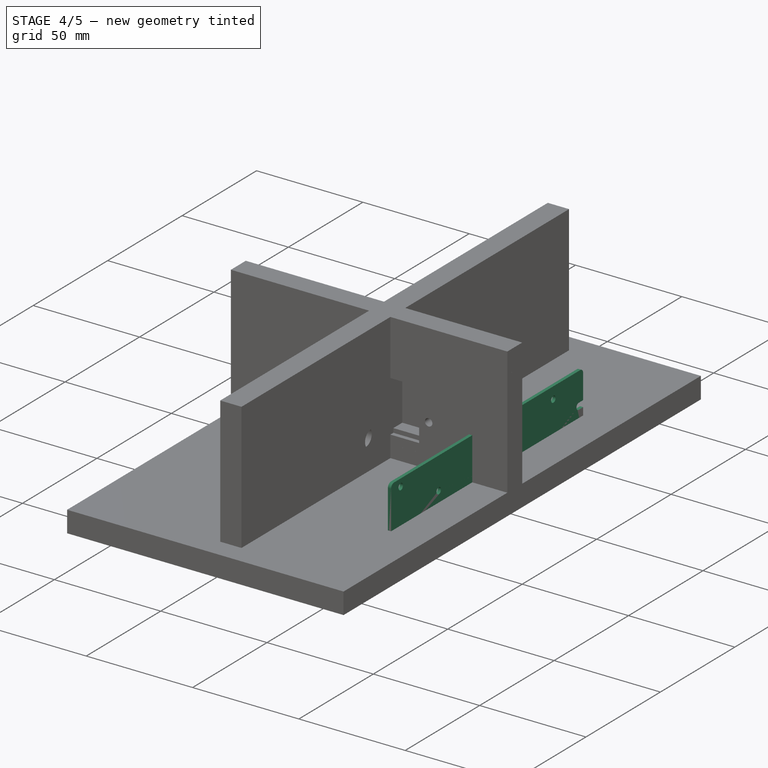
[diagram: stage 4 of 5 — iso view after this stage's code; geometry added in this stage tinted green]
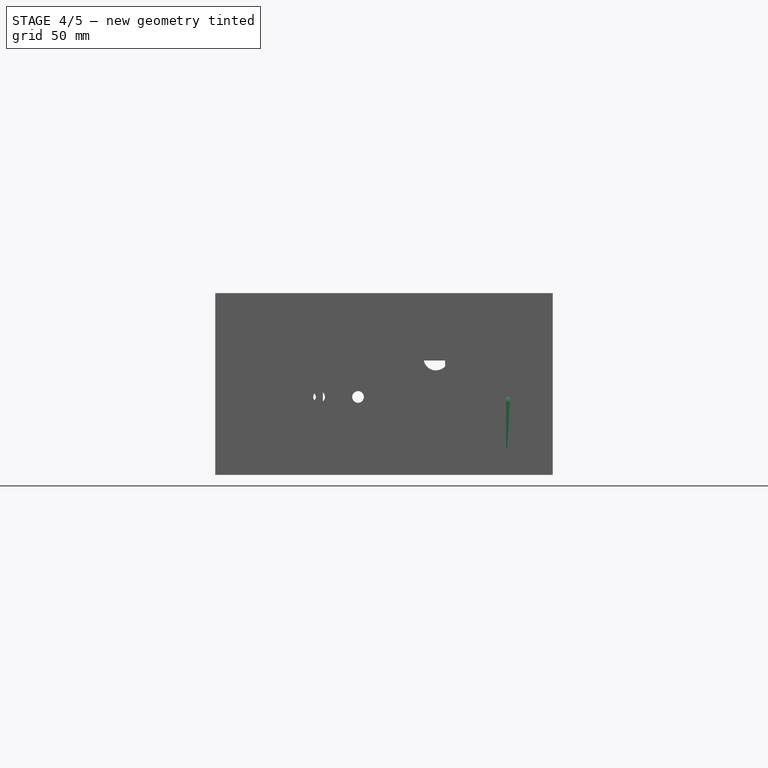
[diagram: stage 4 of 5 — front view after this stage's code; geometry added in this stage tinted green]
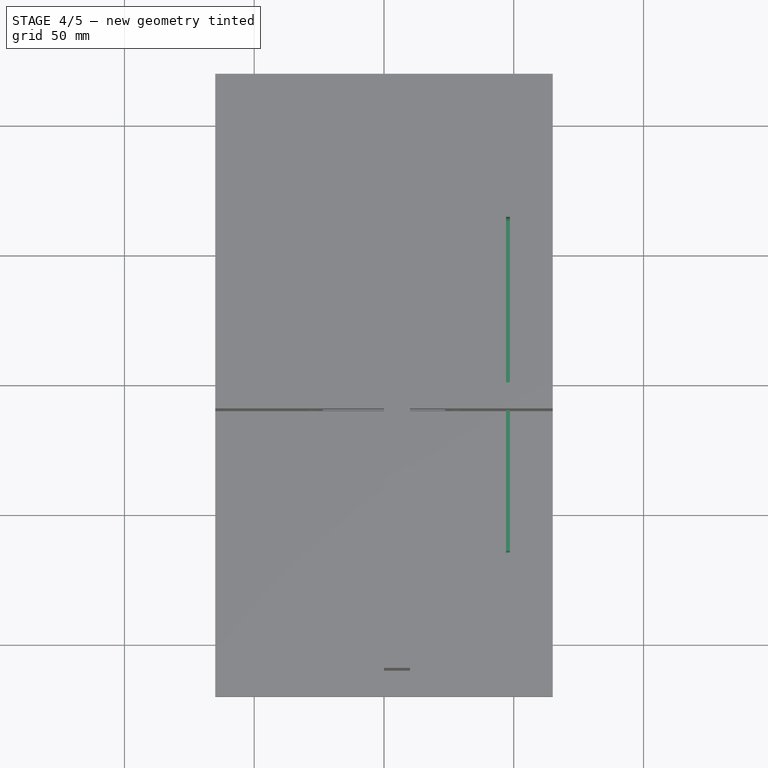
[diagram: stage 4 of 5 — top view after this stage's code; geometry added in this stage tinted green]
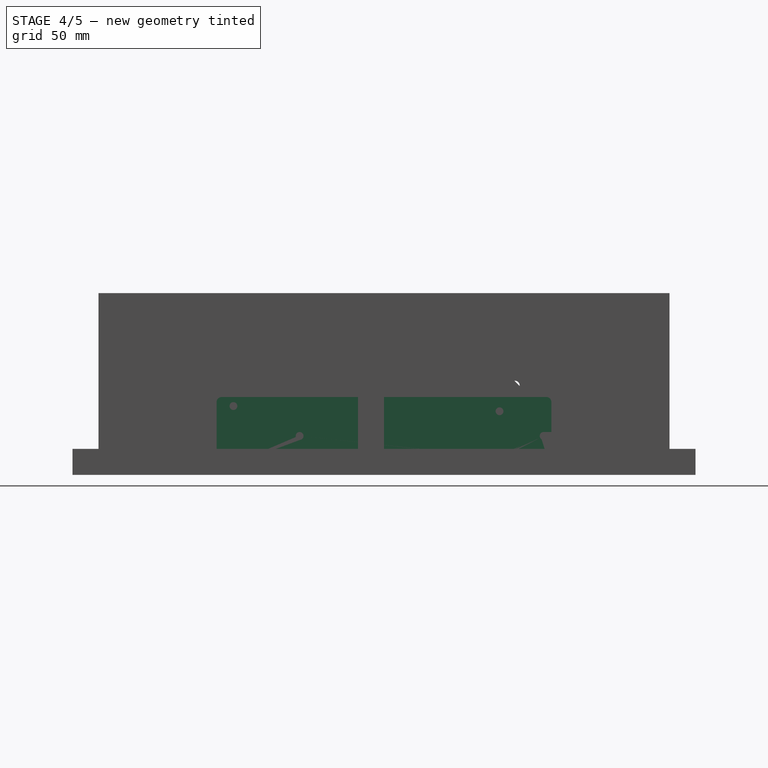
[diagram: stage 4 of 5 — right view after this stage's code; geometry added in this stage tinted green]
FEATURE [Sketcher::SketchObject] Sketch008
  ArcFitTolerance = 0
  AttachmentSupport = -> [XY_Plane005]
  ExternalTypes = [0]
  FullyConstrained = true
  MakeInternals = false
  MapMode = 5
  _ExternalGeoVersion = 0
  sketch-geometry (4):
    g0: LineSegment StartX=-65 StartY=120 StartZ=0 EndX=65 EndY=120 EndZ=0
    g1: LineSegment StartX=65 StartY=120 StartZ=0 EndX=65 EndY=-120 EndZ=0
    g2: LineSegment StartX=65 StartY=-120 StartZ=0 EndX=-65 EndY=-120 EndZ=0
    g3: LineSegment StartX=-65 StartY=-120 StartZ=0 EndX=-65 EndY=120 EndZ=0
  constraints (10):
    c: Coincident(g0,g1)
    c: Coincident(g1,g2)
    c: Coincident(g2,g3)
    c: Coincident(g3,g0)
    c: Horizontal(g0)
    c: Horizontal(g2)
    c: Vertical(g1)
    c: Vertical(g3)
    c: Coincident(g0,g-3)
    c: Coincident(g1,g-4)
FEATURE [PartDesign::Pad] Pad005
  AlongSketchNormal = false
  Direction = (0,0,1)
  Length = 10
  Length2 = 100
  Profile = -> Sketch008
  SideType = 0
  Suppressed = false
  Type = 0
  Type2 = 0
FEATURE [PartDesign::FeaturePython] Bend  # WARN: FeaturePython — macro-defined, semantics opaque (R4)
  AutoMiter = true
  BaseFeature = -> Pad004
  BendType = 1
  LengthList = [28.5]
  ReliefFactor = 0.7
  Suppressed = false
  UseReliefFactor = false
  angle = 90
  baseObject = -> Pad004 [Face2]
  bendAList = [90]
  extend1 = 0
  extend2 = 0
  gap1 = 0
  gap2 = 0
  invert = false
  kfactor = 0.5
  length = 28.5
  maxExtendDist = 5
  minGap = 0.1
  minReliefGap = 1
  miterangle1 = 0
  miterangle2 = 0
  offset = 0
  radius = 0
  reliefType = 0
  reliefd = 1
  reliefw = 0.8
  sketchflip = false
  sketchinvert = false
  unfold = false
FEATURE [PartDesign::Fillet] Fillet001
  Base = -> Bend [Edge13,Edge4,Edge17,Edge25]
  BaseFeature = -> Bend
  Radius = 2
  SupportTransform = false
  Suppressed = false
  UseAllEdges = false
FEATURE [Sketcher::SketchObject] Sketch013
  ArcFitTolerance = 0
  AttachmentSupport = -> [Fillet001]
  ExternalGeometry = -> [Fillet001]
  ExternalTypes = [0]
  FullyConstrained = true
  MakeInternals = false
  MapMode = 5
  Placement = pos=(0,0,0) rot=(1,0,0;3.14159rad)
  _ExternalGeoVersion = 0
  sketch-geometry (7):
    g0: Circle CenterX=-43.5 CenterY=60 CenterZ=0 NormalX=0 NormalY=0 NormalZ=1 AngleXU=0 Radius=1.5
    g1: Circle CenterX=-18.5 CenterY=-13.5 CenterZ=0 NormalX=0 NormalY=0 NormalZ=1 AngleXU=0 Radius=1.5
    g2: Circle CenterX=14.5 CenterY=-13.5 CenterZ=0 NormalX=0 NormalY=0 NormalZ=1 AngleXU=0 Radius=1.5
    g3: LineSegment StartX=39 StartY=-62.5 StartZ=0 EndX=39 EndY=-64.5 EndZ=0
    g4: LineSegment StartX=39 StartY=-64.5 StartZ=0 EndX=42 EndY=-64.5 EndZ=0
    g5: LineSegment StartX=42 StartY=-64.5 StartZ=0 EndX=42 EndY=-62.5 EndZ=0
    g6: ArcOfCircle CenterX=40.5 CenterY=-62.5 CenterZ=0 NormalX=0 NormalY=0 NormalZ=1 AngleXU=0 Radius=1.5 StartAngle=-9e-16 EndAngle=3.14159
  constraints (22):
    c: Coincident(g3,g4)
    c: Horizontal(g4)
    c: Coincident(g4,g5)
    c: Vertical(g5)
    c: Coincident(g6,g5)
    c: Coincident(g6,g3)
    c: Diameter(g0) = 3
    c: Diameter(g1) = 3
    c: Diameter(g2) = 3
    c: Diameter(g6) = 3
    c: DistanceX(g-4,g0) = 5
    c: DistanceY(g0,g-3) = 4.5
    c: DistanceY(g2,g-3) = 78
    c: DistanceY(g1,g-3) = 78
    c: DistanceX(g-4,g1) = 30
    c: DistanceX(g-4,g2) = 63
    c: DistanceY(g-5,g5) = 2
    c: DistanceY(g-5,g3) = 2
    c: DistanceY(g-5,g6) = 2
    c: DistanceY(g-5,g4) = 0
    c: Perpendicular(g4,g3)
    c: DistanceX(g6,g-5) = 6.5
FEATURE [PartDesign::Pocket] Pocket006
  BaseFeature = -> Fillet001
  Direction = (0,0,1)
  Length = 5
  Length2 = 100
  Profile = -> Sketch013
  SideType = 2
  Suppressed = false
  Type = 1
  Type2 = 0
FEATURE [Sketcher::SketchObject] Sketch014
  ArcFitTolerance = 0
  AttachmentSupport = -> [Pocket006]
  ExternalGeometry = -> [Pocket006]
  ExternalTypes = [0]
  FullyConstrained = true
  MakeInternals = false
  MapMode = 5
  Placement = pos=(48.5,0,0) rot=(0.57735,0.57735,0.57735;2.0944rad)
  _ExternalGeoVersion = 0
  sketch-geometry (8):
    g0: Circle CenterX=-58 CenterY=26.5 CenterZ=0 NormalX=0 NormalY=0 NormalZ=1 AngleXU=0 Radius=1.5
    g1: Circle CenterX=-32.5 CenterY=15 CenterZ=0 NormalX=0 NormalY=0 NormalZ=1 AngleXU=0 Radius=1.5
    g2: Circle CenterX=44.5 CenterY=24.5 CenterZ=0 NormalX=0 NormalY=0 NormalZ=1 AngleXU=0 Radius=1.5
    g3: Circle CenterX=44.5 CenterY=6.5 CenterZ=0 NormalX=0 NormalY=0 NormalZ=1 AngleXU=0 Radius=1.5
    g4: LineSegment StartX=61.5 StartY=16.5 StartZ=0 EndX=64.5 EndY=16.5 EndZ=0
    g5: LineSegment StartX=64.5 StartY=16.5 StartZ=0 EndX=64.5 EndY=13.5 EndZ=0
    g6: LineSegment StartX=64.5 StartY=13.5 StartZ=0 EndX=61.5 EndY=13.5 EndZ=0
    g7: ArcOfCircle CenterX=61.5 CenterY=15 CenterZ=0 NormalX=0 NormalY=0 NormalZ=1 AngleXU=0 Radius=1.5 StartAngle=1.5708 EndAngle=4.71239
  constraints (25):
    c: Horizontal(g4)
    c: Coincident(g4,g5)
    c: Coincident(g5,g6)
    c: Diameter(g0) = 3
    c: Diameter(g1) = 3
    c: Diameter(g2) = 3
    c: Diameter(g3) = 3
    c: Diameter(g7) = 3
    c: DistanceX(g-4,g0) = 6.5
    c: DistanceY(g0,g-3) = 3.5
    c: DistanceX(g-4,g1) = 32
    c: DistanceY(g1,g-3) = 15
    c: DistanceX(g2,g-5) = 20
    c: DistanceX(g3,g-5) = 20
    c: DistanceY(g2,g-3) = 5.5
    c: DistanceY(g3,g-3) = 23.5
    c: Coincident(g4,g7)
    c: Coincident(g7,g6)
    c: DistanceX(g7,g-5) = 3
    c: DistanceX(g4,g-5) = 3
    c: DistanceX(g6,g-5) = 3
    c: DistanceX(g4,g-5) = 0
    c: Vertical(g5)
    c: Perpendicular(g5,g6)
    c: DistanceY(g7,g-3) = 15
FEATURE [PartDesign::Pocket] Pocket007
  BaseFeature = -> Pocket006
  Direction = (-1,0,0)
  Length = 5
  Length2 = 100
  Profile = -> Sketch014
  SideType = 2
  Suppressed = false
  Type = 1
  Type2 = 0
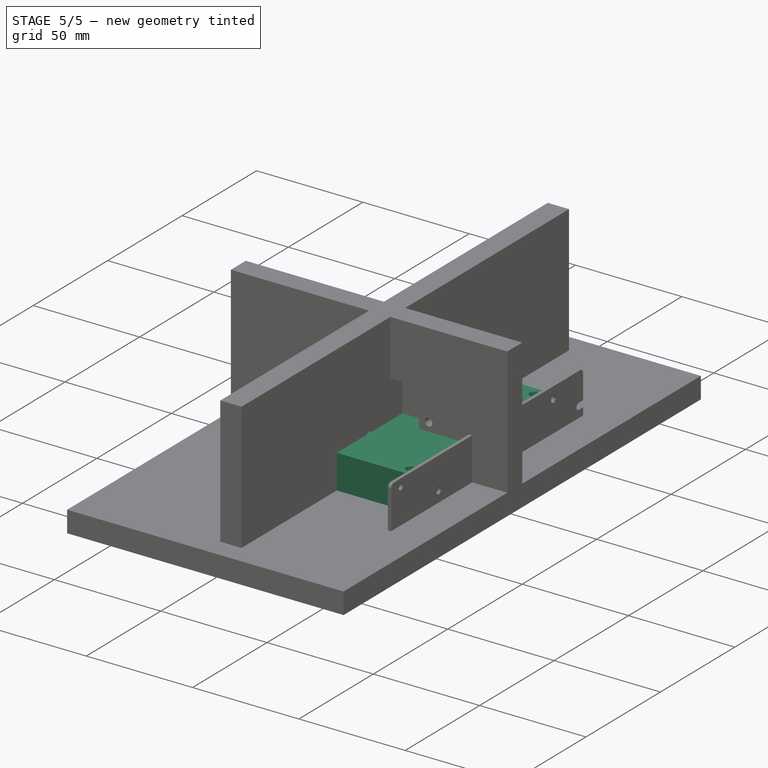
[diagram: stage 5 of 5 — iso view after this stage's code; geometry added in this stage tinted green]
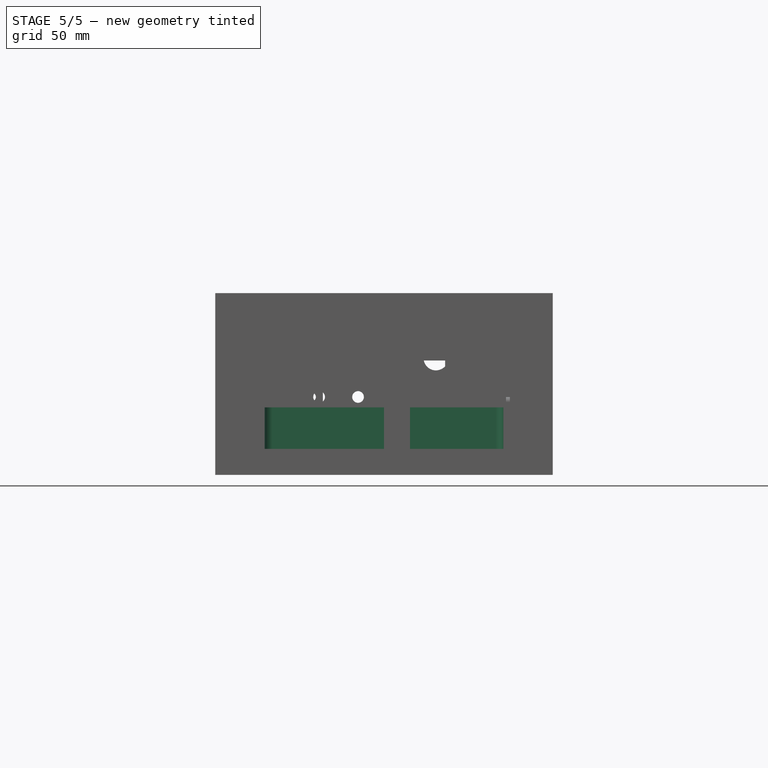
[diagram: stage 5 of 5 — front view after this stage's code; geometry added in this stage tinted green]
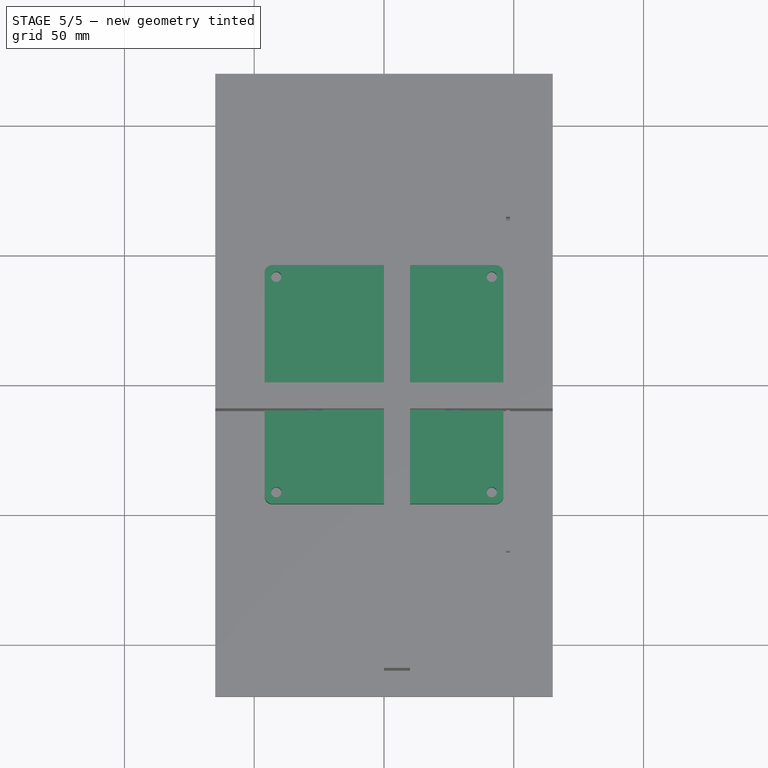
[diagram: stage 5 of 5 — top view after this stage's code; geometry added in this stage tinted green]
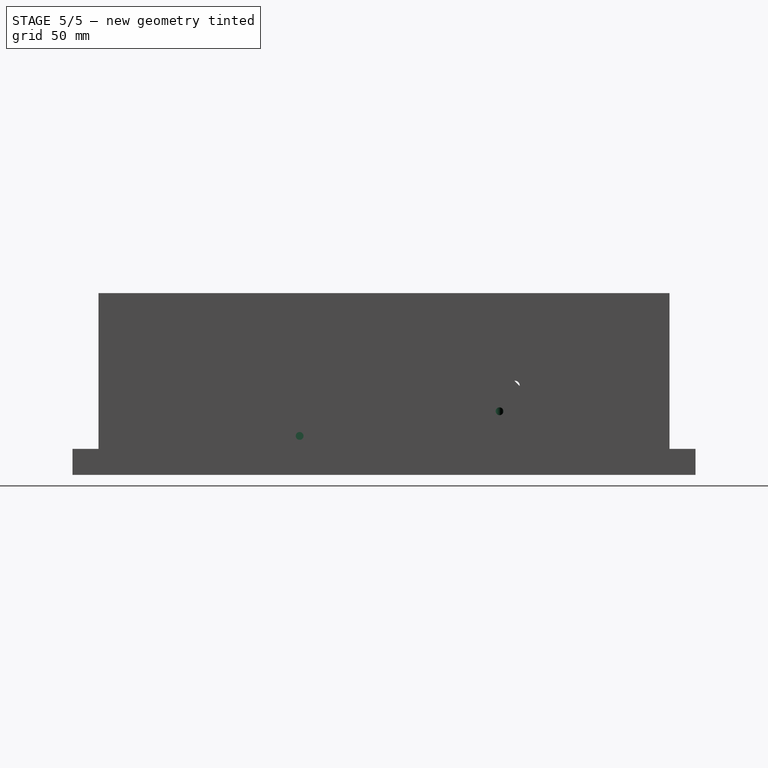
[diagram: stage 5 of 5 — right view after this stage's code; geometry added in this stage tinted green]
FEATURE [Sketcher::SketchObject] Sketch003
  ArcFitTolerance = 0
  AttachmentSupport = -> [XY_Plane003]
  ExternalTypes = [0]
  FullyConstrained = true
  MakeInternals = false
  MapMode = 5
  _ExternalGeoVersion = 0
  sketch-geometry (4):
    g0: LineSegment StartX=-46 StartY=46 StartZ=0 EndX=46 EndY=46 EndZ=0
    g1: LineSegment StartX=46 StartY=46 StartZ=0 EndX=46 EndY=-46 EndZ=0
    g2: LineSegment StartX=46 StartY=-46 StartZ=0 EndX=-46 EndY=-46 EndZ=0
    g3: LineSegment StartX=-46 StartY=-46 StartZ=0 EndX=-46 EndY=46 EndZ=0
  constraints (11):
    c: Coincident(g0,g1)
    c: Coincident(g1,g2)
    c: Coincident(g2,g3)
    c: Coincident(g3,g0)
    c: Horizontal(g0)
    c: Horizontal(g2)
    c: Vertical(g1)
    c: Vertical(g3)
    c: Symmetric(g0,g1,g-1)
    c: DistanceX(g0,g0) = 92
    c: Equal(g0,g1)
FEATURE [PartDesign::Pad] Pad003
  AlongSketchNormal = false
  Direction = (0,0,1)
  Length = 26
  Length2 = 100
  Profile = -> Sketch003
  SideType = 0
  Suppressed = false
  Type = 0
  Type2 = 0
FEATURE [Sketcher::SketchObject] Sketch004
  ArcFitTolerance = 0
  AttachmentSupport = -> [Pad003]
  ExternalTypes = [0]
  FullyConstrained = true
  MakeInternals = false
  MapMode = 5
  Placement = pos=(0,0,0) rot=(1,0,0;3.14159rad)
  _ExternalGeoVersion = 0
  sketch-geometry (4):
    g0: Circle CenterX=41.5 CenterY=41.5 CenterZ=0 NormalX=0 NormalY=0 NormalZ=1 AngleXU=0 Radius=2
    g1: Circle CenterX=-41.5 CenterY=41.5 CenterZ=0 NormalX=0 NormalY=0 NormalZ=1 AngleXU=0 Radius=2
    g2: Circle CenterX=41.5 CenterY=-41.5 CenterZ=0 NormalX=0 NormalY=0 NormalZ=1 AngleXU=0 Radius=2
    g3: Circle CenterX=-41.5 CenterY=-41.5 CenterZ=0 NormalX=0 NormalY=0 NormalZ=1 AngleXU=0 Radius=2
  constraints (9):
    c: Symmetric(g0,g1,g-2)
    c: DistanceX(g1,g0) = 83
    c: Diameter(g0) = 4
    c: Diameter(g1) = 4
    c: Symmetric(g0,g2,g-1)
    c: DistanceY(g2,g0) = 83
    c: Symmetric(g2,g3,g-2)
    c: Diameter(g2) = 4
    c: Diameter(g3) = 4
FEATURE [PartDesign::Pocket] Pocket
  BaseFeature = -> Pad003
  Direction = (0,0,1)
  Length = 5
  Length2 = 100
  Profile = -> Sketch004
  SideType = 2
  Suppressed = false
  Type = 1
  Type2 = 0
FEATURE [PartDesign::Fillet] Fillet
  Base = -> Pocket [Edge1,Edge5,Edge8,Edge2]
  BaseFeature = -> Pocket
  Radius = 3
  SupportTransform = false
  Suppressed = false
  UseAllEdges = false
FEATURE [Sketcher::SketchObject] Sketch009
  ArcFitTolerance = 0
  AttachmentSupport = -> [Pad005]
  ExternalTypes = [0]
  FullyConstrained = true
  MakeInternals = false
  MapMode = 5
  Placement = pos=(0,0,0) rot=(1,0,0;3.14159rad)
  _ExternalGeoVersion = 0
  sketch-geometry (4):
    g0: Circle CenterX=-41.5 CenterY=-57.5 CenterZ=0 NormalX=0 NormalY=0 NormalZ=1 AngleXU=0 Radius=2
    g1: Circle CenterX=-41.5 CenterY=25.5 CenterZ=0 NormalX=0 NormalY=0 NormalZ=1 AngleXU=0 Radius=2
    g2: Circle CenterX=41.5 CenterY=25.5 CenterZ=0 NormalX=0 NormalY=0 NormalZ=1 AngleXU=0 Radius=2
    g3: Circle CenterX=41.5 CenterY=-57.5 CenterZ=0 NormalX=0 NormalY=0 NormalZ=1 AngleXU=0 Radius=2
  constraints (12):
    c: DistanceX(g1,g-3) = 2
    c: DistanceY(g1,g-3) = 0
    c: DistanceY(g2,g-4) = 0
    c: DistanceY(g3,g-5) = 0
    c: DistanceY(g-6,g0) = 0
    c: DistanceX(g2,g-4) = 2
    c: DistanceX(g3,g-5) = 2
    c: DistanceX(g0,g-6) = 2
    c: Diameter(g0) = 4
    c: Diameter(g3) = 4
    c: Diameter(g1) = 4
    c: Diameter(g2) = 4
FEATURE [PartDesign::Pocket] Pocket003
  BaseFeature = -> Pad005
  Direction = (0,0,1)
  Length = 5
  Length2 = 100
  Profile = -> Sketch009
  SideType = 2
  Suppressed = false
  Type = 1
  Type2 = 0
FEATURE [Sketcher::SketchObject] Sketch010
  ArcFitTolerance = 0
  AttachmentSupport = -> [Pocket003]
  ExternalGeometry = -> [Pocket003]
  ExternalTypes = [0]
  FullyConstrained = true
  MakeInternals = false
  MapMode = 5
  Placement = pos=(0,0,10) rot=(0,0,1;0rad)
  _ExternalGeoVersion = 0
  sketch-geometry (4):
    g0: Circle CenterX=-41.5 CenterY=57.5 CenterZ=0 NormalX=0 NormalY=0 NormalZ=1 AngleXU=0 Radius=5
    g1: Circle CenterX=41.5 CenterY=57.5 CenterZ=0 NormalX=0 NormalY=0 NormalZ=1 AngleXU=0 Radius=5
    g2: Circle CenterX=-41.5 CenterY=-25.5 CenterZ=0 NormalX=0 NormalY=0 NormalZ=1 AngleXU=0 Radius=5
    g3: Circle CenterX=41.5 CenterY=-25.5 CenterZ=0 NormalX=0 NormalY=0 NormalZ=1 AngleXU=0 Radius=5
  constraints (12):
    c: DistanceY(g-3,g0) = 0
    c: DistanceY(g-4,g1) = 0
    c: DistanceY(g3,g-6) = 0
    c: DistanceY(g-5,g2) = 0
    c: DistanceX(g0,g-3) = 2
    c: DistanceX(g1,g-4) = 2
    c: DistanceX(g2,g-5) = 2
    c: DistanceX(g3,g-6) = 2
    c: Diameter(g0) = 10
    c: Diameter(g1) = 10
    c: Diameter(g2) = 10
    c: Diameter(g3) = 10
FEATURE [PartDesign::Pocket] Pocket004
  BaseFeature = -> Pocket003
  Direction = (0,0,-1)
  Length = 4
  Length2 = 100
  Profile = -> Sketch010
  SideType = 0
  Suppressed = false
  Type = 0
  Type2 = 0
FEATURE [Sketcher::SketchObject] Sketch011
  ArcFitTolerance = 0
  AttachmentSupport = -> [Pocket004]
  ExternalGeometry = -> [Pocket004]
  ExternalTypes = [0]
  FullyConstrained = true
  MakeInternals = false
  MapMode = 5
  Placement = pos=(0,0,10) rot=(0,0,1;0rad)
  _ExternalGeoVersion = 0
  sketch-geometry (28):
    g0: ArcOfCircle CenterX=-30.5 CenterY=-14.5 CenterZ=0 NormalX=0 NormalY=0 NormalZ=1 AngleXU=0 Radius=4 StartAngle=2.35619 EndAngle=5.49779
    g1: ArcOfCircle CenterX=30.5 CenterY=46.5 CenterZ=0 NormalX=0 NormalY=0 NormalZ=1 AngleXU=0 Radius=4 StartAngle=5.49779 EndAngle=8.63938
    g2: LineSegment StartX=-27.6716 StartY=-17.3284 StartZ=0 EndX=33.3284 EndY=43.6716 EndZ=0
    g3: LineSegment StartX=27.6716 StartY=49.3284 StartZ=0 EndX=-33.3284 EndY=-11.6716 EndZ=0
    g4: ArcOfCircle CenterX=-39.5 CenterY=-5.11522 CenterZ=0 NormalX=0 NormalY=0 NormalZ=1 AngleXU=0 Radius=4 StartAngle=2.35619 EndAngle=5.49779
    g5: ArcOfCircle CenterX=21.1152 CenterY=55.5 CenterZ=0 NormalX=0 NormalY=0 NormalZ=1 AngleXU=0 Radius=4 StartAngle=5.49779 EndAngle=8.63938
    g6: LineSegment StartX=-36.6716 StartY=-7.94365 StartZ=0 EndX=23.9437 EndY=52.6716 EndZ=0
    g7: LineSegment StartX=18.2868 StartY=58.3284 StartZ=0 EndX=-42.3284 EndY=-2.2868 EndZ=0
    g8: ArcOfCircle CenterX=-39.5 CenterY=13.2696 CenterZ=0 NormalX=0 NormalY=0 NormalZ=1 AngleXU=0 Radius=4 StartAngle=2.35619 EndAngle=5.49779
    g9: ArcOfCircle CenterX=2.73045 CenterY=55.5 CenterZ=0 NormalX=0 NormalY=0 NormalZ=1 AngleXU=0 Radius=4 StartAngle=5.49779 EndAngle=8.63938
    g10: LineSegment StartX=-36.6716 StartY=10.4411 StartZ=0 EndX=5.55887 EndY=52.6716 EndZ=0
    g11: LineSegment StartX=-0.0979797 StartY=58.3284 StartZ=0 EndX=-42.3284 EndY=16.098 EndZ=0
    g12: ArcOfCircle CenterX=-39.5 CenterY=31.6543 CenterZ=0 NormalX=0 NormalY=0 NormalZ=1 AngleXU=0 Radius=4 StartAngle=2.35619 EndAngle=5.49779
    g13: ArcOfCircle CenterX=-15.6543 CenterY=55.5 CenterZ=0 NormalX=0 NormalY=0 NormalZ=1 AngleXU=0 Radius=4 StartAngle=5.49779 EndAngle=8.63938
    g14: LineSegment StartX=-36.6716 StartY=28.8259 StartZ=0 EndX=-12.8259 EndY=52.6716 EndZ=0
    g15: LineSegment StartX=-18.4828 StartY=58.3284 StartZ=0 EndX=-42.3284 EndY=34.4828 EndZ=0
    g16: ArcOfCircle CenterX=-21.1152 CenterY=-23.5 CenterZ=0 NormalX=0 NormalY=0 NormalZ=1 AngleXU=0 Radius=4 StartAngle=2.35619 EndAngle=5.49779
    g17: ArcOfCircle CenterX=41.5 CenterY=39.1152 CenterZ=0 NormalX=0 NormalY=0 NormalZ=1 AngleXU=0 Radius=4 StartAngle=5.49779 EndAngle=8.63938
    g18: LineSegment StartX=-18.2868 StartY=-26.3284 StartZ=0 EndX=44.3284 EndY=36.2868 EndZ=0
    g19: LineSegment StartX=38.6716 StartY=41.9437 StartZ=0 EndX=-23.9437 EndY=-20.6716 EndZ=0
    g20: ArcOfCircle CenterX=-2.73045 CenterY=-23.5 CenterZ=0 NormalX=0 NormalY=0 NormalZ=1 AngleXU=0 Radius=4 StartAngle=2.35619 EndAngle=5.49779
    g21: ArcOfCircle CenterX=41.5 CenterY=20.7304 CenterZ=0 NormalX=0 NormalY=0 NormalZ=1 AngleXU=0 Radius=4 StartAngle=5.49779 EndAngle=8.63938
    g22: LineSegment StartX=0.0979797 StartY=-26.3284 StartZ=0 EndX=44.3284 EndY=17.902 EndZ=0
    g23: LineSegment StartX=38.6716 StartY=23.5589 StartZ=0 EndX=-5.55887 EndY=-20.6716 EndZ=0
    g24: ArcOfCircle CenterX=15.6543 CenterY=-23.5 CenterZ=0 NormalX=0 NormalY=0 NormalZ=1 AngleXU=0 Radius=4 StartAngle=2.35619 EndAngle=5.49779
    g25: ArcOfCircle CenterX=41.5 CenterY=2.34567 CenterZ=0 NormalX=0 NormalY=0 NormalZ=1 AngleXU=0 Radius=4 StartAngle=5.49779 EndAngle=8.63938
    g26: LineSegment StartX=18.4828 StartY=-26.3284 StartZ=0 EndX=44.3284 EndY=-0.482756 EndZ=0
    g27: LineSegment StartX=38.6716 StartY=5.1741 StartZ=0 EndX=12.8259 EndY=-20.6716 EndZ=0
  constraints (70):
    c: Tangent(g0,g2) = -1.5708
    c: Tangent(g2,g1) = -1.5708
    c: Tangent(g1,g3) = -1.5708
    c: Tangent(g3,g0) = -1.5708
    c: Equal(g0,g1)
    c: DistanceX(g0,g-4) = -9
    c: DistanceX(g-3,g1) = -13
    c: Radius(g1) = 4
    c: DistanceY(g-3,g1) = -11
    c: DistanceY(g-4,g0) = 11
    c: Tangent(g4,g6) = -1.5708
    c: Tangent(g6,g5) = -1.5708
    c: Tangent(g5,g7) = -1.5708
    c: Tangent(g7,g4) = -1.5708
    c: Equal(g4,g5)
    c: Radius(g5) = 4
    c: Tangent(g8,g10) = -1.5708
    c: Tangent(g10,g9) = -1.5708
    c: Tangent(g9,g11) = -1.5708
    c: Tangent(g11,g8) = -1.5708
    c: Equal(g8,g9)
    c: Radius(g9) = 4
    c: Parallel(g10,g7)
    c: Tangent(g12,g14) = -1.5708
    c: Tangent(g14,g13) = -1.5708
    c: Tangent(g13,g15) = -1.5708
    c: Tangent(g15,g12) = -1.5708
    c: Equal(g12,g13)
    c: Radius(g13) = 4
    c: Parallel(g14,g11)
    c: Parallel(g6,g3)
    c: Distance(g1,g6) = 5
    c: Distance(g5,g10) = 5
    c: Distance(g9,g14) = 5
    c: DistanceX(g4,g-4) = 0
    c: DistanceX(g4,g8) = 0
    c: DistanceX(g8,g12) = 0
    c: DistanceY(g-3,g5) = -2
    c: DistanceY(g5,g9) = 0
    c: DistanceY(g9,g13) = 0
    c: Tangent(g16,g18) = -1.5708
    c: Tangent(g18,g17) = -1.5708
    c: Tangent(g17,g19) = -1.5708
    c: Tangent(g19,g16) = -1.5708
    c: Equal(g16,g17)
    c: Tangent(g20,g22) = -1.5708
    c: Tangent(g22,g21) = -1.5708
    c: Tangent(g21,g23) = -1.5708
    c: Tangent(g23,g20) = -1.5708
    c: Equal(g20,g21)
    c: Tangent(g24,g26) = -1.5708
    c: Tangent(g26,g25) = -1.5708
    c: Tangent(g25,g27) = -1.5708
    c: Tangent(g27,g24) = -1.5708
    c: Equal(g24,g25)
    c: Radius(g17) = 4
    c: Radius(g21) = 4
    c: Radius(g25) = 4
    c: Parallel(g2,g19)
    c: Parallel(g18,g23)
    c: Parallel(g22,g27)
    c: Distance(g1,g19) = 5
    c: Distance(g17,g23) = 5
    c: Distance(g21,g27) = 5
    c: DistanceY(g-4,g16) = 2
    c: DistanceY(g16,g20) = 0
    c: DistanceY(g24,g20) = 0
    c: DistanceX(g17,g-3) = 2
    c: DistanceX(g21,g17) = 0
    c: DistanceX(g21,g25) = 0
FEATURE [PartDesign::Pocket] Pocket005
  BaseFeature = -> Pocket004
  Direction = (0,0,-1)
  Length = 5
  Length2 = 100
  Profile = -> Sketch011
  SideType = 2
  Suppressed = false
  Type = 1
  Type2 = 0
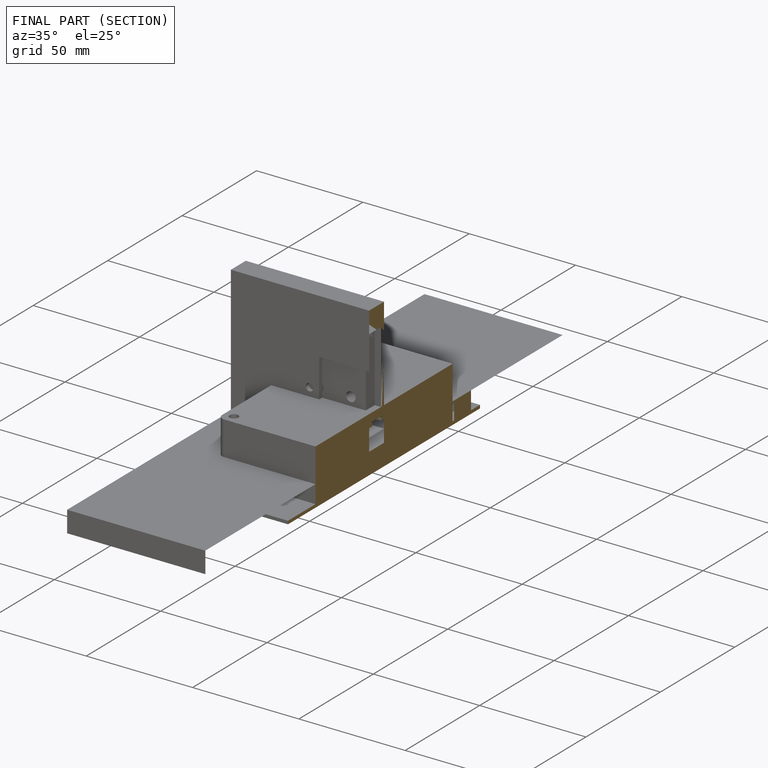
[diagram: finished part — half-section view (interior)]
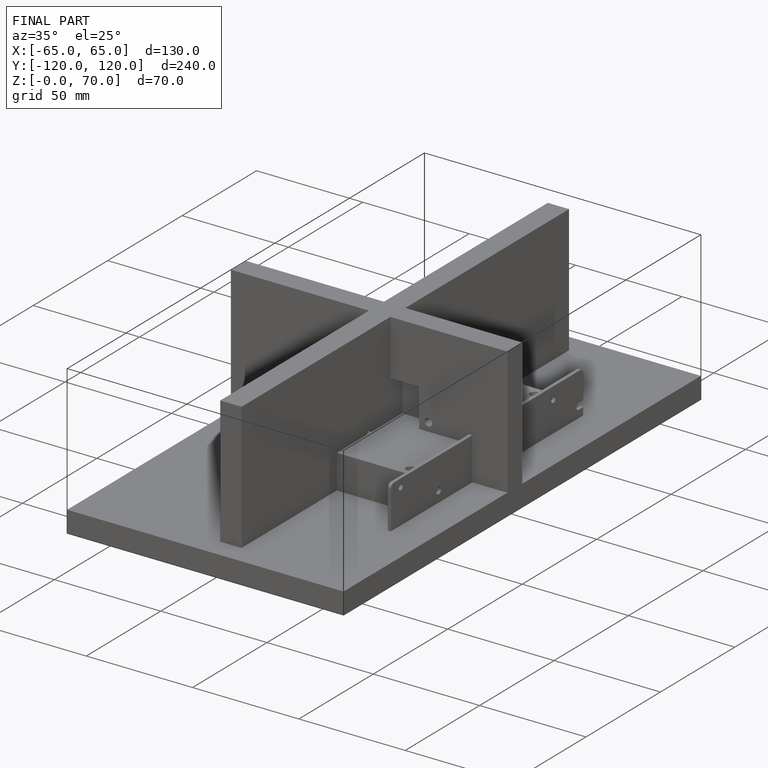
[diagram: finished part — iso view with bounding-box wireframe]
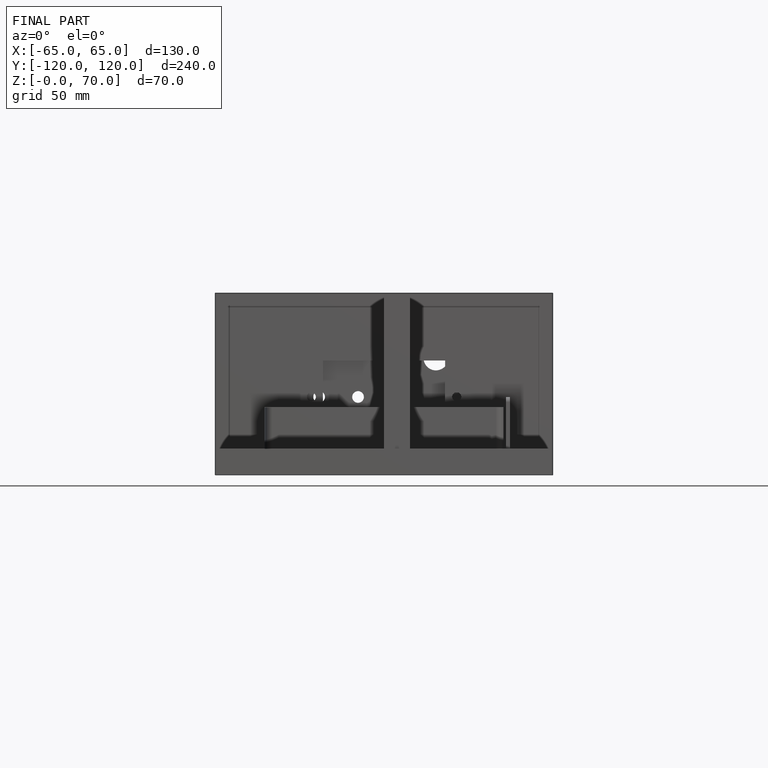
[diagram: finished part — front view with bounding-box wireframe]
